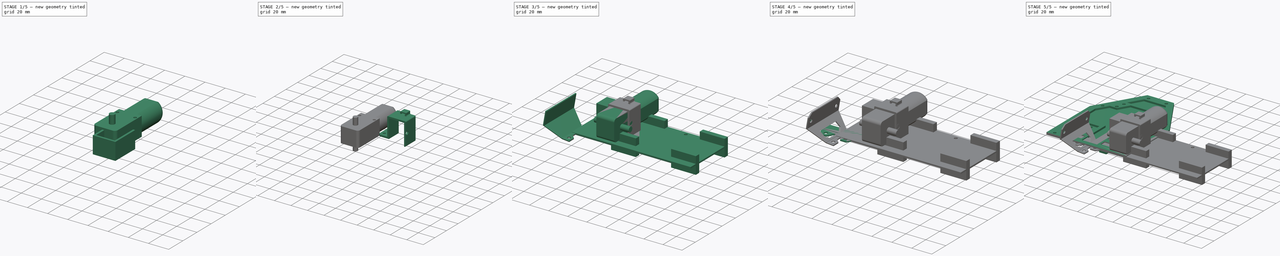
[diagram: build sequence overview — one tinted view per stage of 5, left to right]
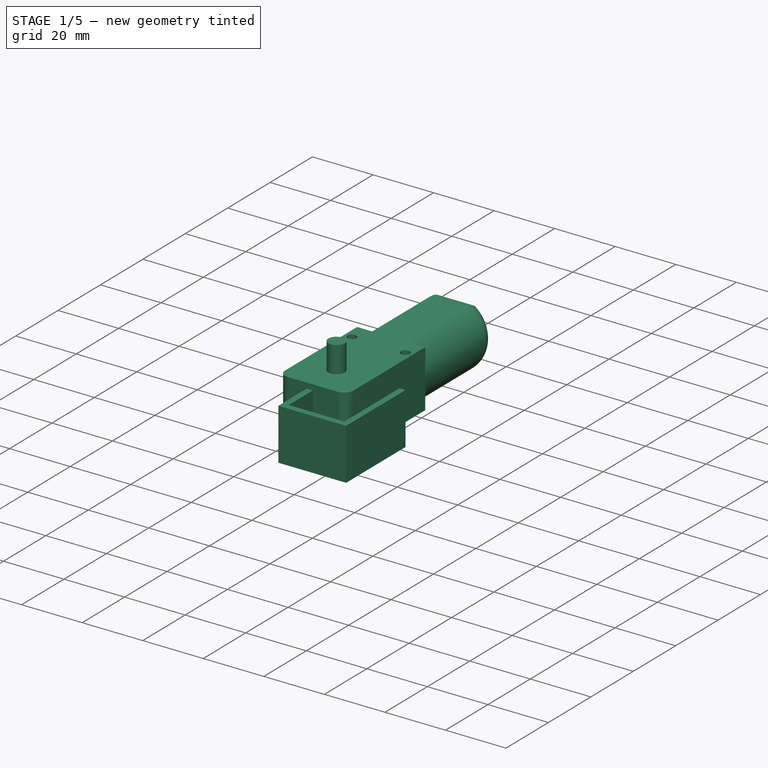
[diagram: stage 1 of 5 — iso view after this stage's code; geometry added in this stage tinted green]
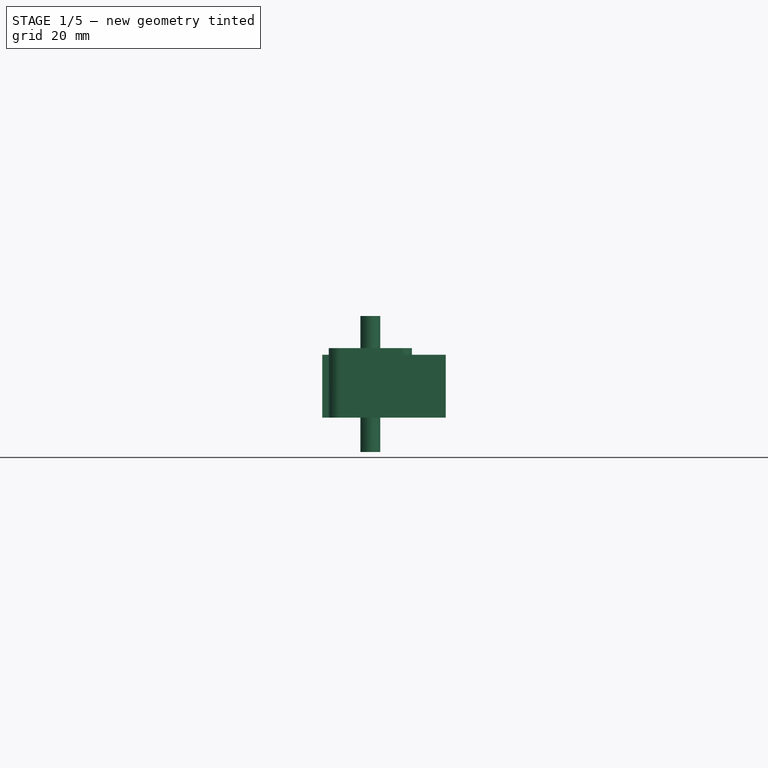
[diagram: stage 1 of 5 — front view after this stage's code; geometry added in this stage tinted green]
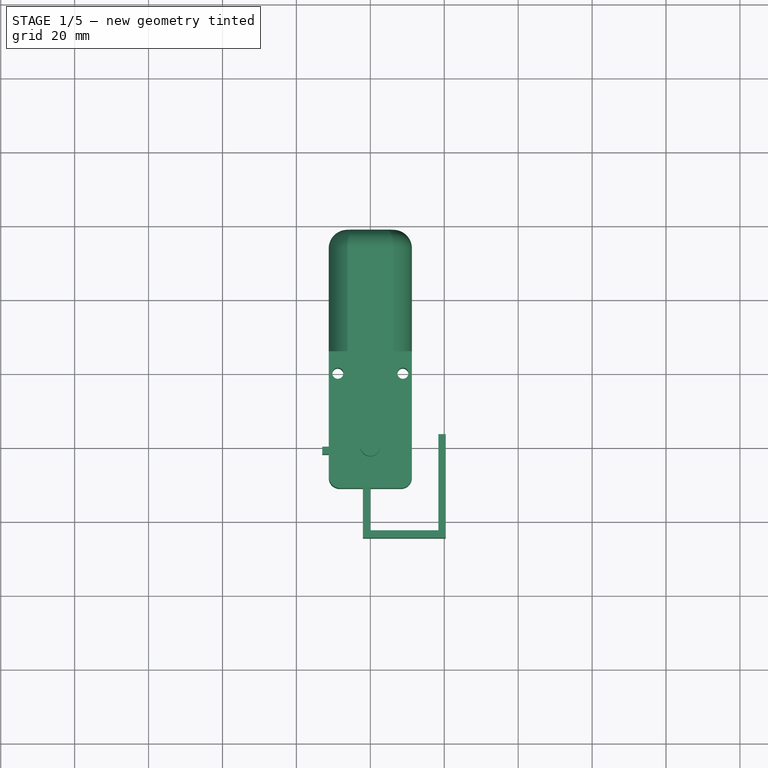
[diagram: stage 1 of 5 — top view after this stage's code; geometry added in this stage tinted green]
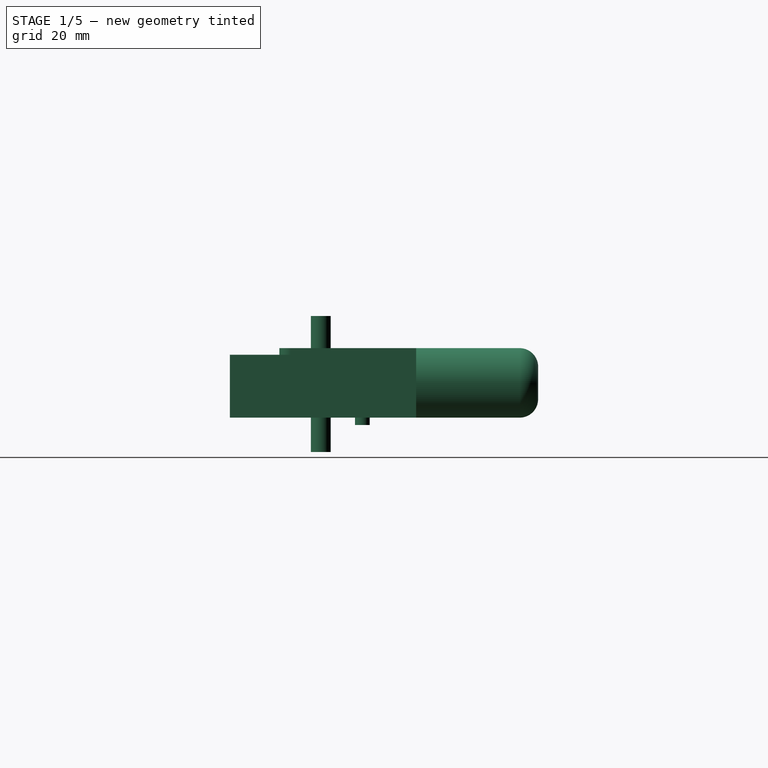
[diagram: stage 1 of 5 — right view after this stage's code; geometry added in this stage tinted green]
FCSTD DOCUMENT  (FreeCAD 0.18R4 (GitTag))
Label: chasis_v3
License: All rights reserved
LicenseURL: http://en.wikipedia.org/wiki/All_rights_reserved
objects: Sketcher::SketchObject×30, Part::Feature×20, PartDesign::Pad×16, PartDesign::Pocket×13, PartDesign::Body×7, PartDesign::Fillet×5, App::Part×4, PartDesign::Chamfer×3, Part::Mirroring×2, PartDesign::CoordinateSystem×1, App::DocumentObjectGroup×1
note: 126 computed .brp shape members not serialized (recipe doc carries the construction recipe); baked Part::Feature solids carry a one-line shape summary decoded from their .brp

FEATURE [PartDesign::Body] Body004  label="TivaC"
  Group = -> [Sketch018,Pad007,Sketch017,Pad008,Sketch019,Pad009]
  Origin = -> Origin008
  Placement = pos=(28,0,39) rot=(0,0,1;1.5708rad)
  Tip = -> Pad009
FEATURE [Sketcher::SketchObject] Sketch025  label="Sketch026"
  MapMode = 5
  Placement = pos=(18.4,0,0) rot=(0.57735,-0.57735,-0.57735;2.0944rad)
  sketch-geometry (3):
    g0: ArcOfCircle CenterX=11.1 CenterY=14.4 CenterZ=0 NormalX=0 NormalY=0 NormalZ=1 AngleXU=0 Radius=2 StartAngle=2.18166 EndAngle=7.24312
    g1: LineSegment StartX=9.95285 StartY=16.0383 StartZ=0 EndX=11.1 EndY=16.8415 EndZ=0
    g2: LineSegment StartX=11.1 StartY=16.8415 StartZ=0 EndX=12.2472 EndY=16.0383 EndZ=0
  constraints (8):
    c: DistanceX(g-1,g0) = 11.1
    c: Radius(g0) = 2
    c: DistanceY(g-1,g0) = 14.4
    c: Coincident(g1,g2)
    c: Tangent(g0,g1) = 1.5708
    c: Tangent(g0,g2) = 1.5708
    c: Vertical(g0,g1)
    c: Angle(g2,g-1) = 0.610865
FEATURE [Sketcher::SketchObject] Sketch027  label="Sketch028"
  MapMode = 5
  Support = -> [XY_Plane010]
  sketch-geometry (10):
    g0: LineSegment StartX=-2 StartY=-24.6 StartZ=0 EndX=-2 EndY=-2 EndZ=0
    g1: LineSegment StartX=-2 StartY=-2 StartZ=0 EndX=-13 EndY=-2 EndZ=0
    g2: LineSegment StartX=-13 StartY=-2 StartZ=0 EndX=-13 EndY=0 EndZ=0
    g3: LineSegment StartX=-13 StartY=0 StartZ=0 EndX=0 EndY=0 EndZ=0
    g4: LineSegment StartX=0 StartY=0 StartZ=0 EndX=0 EndY=-22.6 EndZ=0
    g5: LineSegment StartX=0 StartY=-22.6 StartZ=0 EndX=18.4 EndY=-22.6 EndZ=0
    g6: LineSegment StartX=18.4 StartY=-22.6 StartZ=0 EndX=18.4 EndY=3.4 EndZ=0
    g7: LineSegment StartX=18.4 StartY=3.4 StartZ=0 EndX=20.4 EndY=3.4 EndZ=0
    g8: LineSegment StartX=20.4 StartY=3.4 StartZ=0 EndX=20.4 EndY=-24.6 EndZ=0
    g9: LineSegment StartX=-2 StartY=-24.6 StartZ=0 EndX=20.4 EndY=-24.6 EndZ=0
  constraints (29):
    c: Coincident(g0,g1)
    c: Coincident(g1,g2)
    c: Coincident(g2,g3)
    c: Coincident(g3,g4)
    c: Coincident(g4,g5)
    c: Coincident(g5,g6)
    c: Coincident(g6,g7)
    c: Coincident(g7,g8)
    c: Coincident(g8,g9)
    c: Coincident(g0,g9)
    c: Horizontal(g7)
    c: Horizontal(g9)
    c: Horizontal(g5)
    c: Horizontal(g3)
    c: Horizontal(g1)
    c: Vertical(g2)
    c: Vertical(g4)
    c: Vertical(g0)
    c: Vertical(g6)
    c: Vertical(g8)
    c: Distance(g5) = 18.4
    c: Distance(g4) = 22.6
    c: Distance(g2) = 2
    c: DistanceX(g0,g4) = 2
    c: DistanceX(g5,g8) = 2
    c: DistanceY(g0,g4) = 2
    c: Distance(g6) = 26
    c: Distance(g3) = 13
    c: Coincident(g3,g-1)
FEATURE [PartDesign::Pad] Pad015
  Length = 17
  Length2 = 100
  Profile = -> Sketch027
  Type = 0
FEATURE [Sketcher::SketchObject] Sketch026  label="Sketch027"
  MapMode = 5
  Placement = pos=(0,-2,0) rot=(1,0,0;1.5708rad)
  Support = -> [Pad015]
  sketch-geometry (2):
    g0: Circle CenterX=-9 CenterY=3.65577 CenterZ=0 NormalX=0 NormalY=0 NormalZ=1 AngleXU=0 Radius=1.6
    g1: Circle CenterX=-9 CenterY=12.0779 CenterZ=0 NormalX=0 NormalY=0 NormalZ=1 AngleXU=0 Radius=1.6
  constraints (4):
    c: Radius(g1) = 1.6
    c: Equal(g1,g0)
    c: DistanceX(g0,g-1) = 9
    c: Vertical(g0,g1)
FEATURE [PartDesign::Pocket] Pocket011
  BaseFeature = -> Pad015
  Length = 5
  Length2 = 100
  Profile = -> Sketch026
  Type = 0
FEATURE [Sketcher::SketchObject] Sketch020  label="Sketch021"
  MapMode = 5
  Support = -> [XY_Plane009]
  sketch-geometry (8):
    g0: LineSegment StartX=-8.25 StartY=-11.2 StartZ=0 EndX=8.25 EndY=-11.2 EndZ=0
    g1: LineSegment StartX=11.25 StartY=-8.2 StartZ=0 EndX=11.25 EndY=25.8 EndZ=0
    g2: LineSegment StartX=11.25 StartY=25.8 StartZ=0 EndX=-11.25 EndY=25.8 EndZ=0
    g3: LineSegment StartX=-11.25 StartY=25.8 StartZ=0 EndX=-11.25 EndY=-8.2 EndZ=0
    g4: ArcOfCircle CenterX=-8.25 CenterY=-8.2 CenterZ=0 NormalX=0 NormalY=0 NormalZ=1 AngleXU=0 Radius=3 StartAngle=3.14159 EndAngle=4.71239
    g5: ArcOfCircle CenterX=8.25 CenterY=-8.2 CenterZ=0 NormalX=0 NormalY=0 NormalZ=1 AngleXU=0 Radius=3 StartAngle=4.71239 EndAngle=6.28319
    g6: Circle CenterX=-8.8 CenterY=19.85 CenterZ=0 NormalX=0 NormalY=0 NormalZ=1 AngleXU=0 Radius=1.5
    g7: Circle CenterX=8.8 CenterY=19.85 CenterZ=0 NormalX=0 NormalY=0 NormalZ=1 AngleXU=0 Radius=1.5
  constraints (20):
    c: Coincident(g1,g2)
    c: Coincident(g2,g3)
    c: Horizontal(g0)
    c: Vertical(g1)
    c: Vertical(g3)
    c: Distance(g2) = 22.5
    c: Tangent(g0,g4) = -1.5708
    c: Tangent(g3,g4) = -1.5708
    c: Tangent(g0,g5) = -1.5708
    c: Tangent(g1,g5) = -1.5708
    c: DistanceY(g0,g1) = 37
    c: Equal(g5,g4)
    c: Symmetric(g1,g2,g-2)
    c: Radius(g5) = 3
    c: Distance(g7,g6) = 17.6
    c: Radius(g6) = 1.5
    c: Equal(g7,g6)
    c: Symmetric(g7,g6,g-2)
    c: DistanceY(g-1,g7) = 19.85
    c: DistanceY(g0,g-1) = 11.2
FEATURE [PartDesign::Pad] Pad012
  Length = 18.8
  Length2 = 100
  Profile = -> Sketch020
  Type = 0
FEATURE [Sketcher::SketchObject] Sketch022  label="Sketch023"
  MapMode = 5
  Placement = pos=(0,0,18.8) rot=(0,0,1;0rad)
  Support = -> [Pad012]
  sketch-geometry (1):
    g0: Circle CenterX=0 CenterY=0 CenterZ=0 NormalX=0 NormalY=0 NormalZ=1 AngleXU=0 Radius=2.7
  constraints (2):
    c: Coincident(g-1,g0)
    c: Radius(g0) = 2.7
FEATURE [PartDesign::Pad] Pad010
  BaseFeature = -> Pad012
  Length = 8.7
  Length2 = 100
  Profile = -> Sketch022
  Type = 0
FEATURE [Sketcher::SketchObject] Sketch023  label="Sketch024"
  MapMode = 5
  Placement = pos=(0,0,0) rot=(1,0,0;3.14159rad)
  Support = -> [Pad010]
  sketch-geometry (1):
    g0: Circle CenterX=0 CenterY=0 CenterZ=0 NormalX=0 NormalY=0 NormalZ=1 AngleXU=0 Radius=2.7
  constraints (1):
    c: Radius(g0) = 2.7
FEATURE [PartDesign::Pad] Pad011
  BaseFeature = -> Pad010
  Length = 9.3
  Length2 = 100
  Profile = -> Sketch023
  Type = 0
FEATURE [Sketcher::SketchObject] Sketch024  label="Sketch025"
  ExternalGeometry = -> [Pad011]
  MapMode = 5
  Placement = pos=(0,25.8,0) rot=(0,0.707107,0.707107;3.14159rad)
  Support = -> [Pad011]
  sketch-geometry (5):
    g0: LineSegment [constr] StartX=-11.25 StartY=9.4 StartZ=0 EndX=11.25 EndY=9.4 EndZ=0
    g1: ArcOfCircle CenterX=0 CenterY=9.4 CenterZ=0 NormalX=0 NormalY=0 NormalZ=1 AngleXU=0 Radius=11.25 StartAngle=5.29404 EndAngle=7.27233
    g2: LineSegment StartX=6.18082 StartY=18.8 StartZ=0 EndX=-6.18082 EndY=18.8 EndZ=0
    g3: LineSegment StartX=6.18082 StartY=-3.6e-15 StartZ=0 EndX=-6.18082 EndY=-3.6e-15 EndZ=0
    g4: ArcOfCircle CenterX=0 CenterY=9.4 CenterZ=0 NormalX=0 NormalY=0 NormalZ=1 AngleXU=0 Radius=11.25 StartAngle=2.15245 EndAngle=4.13074
  constraints (17):
    c: Equal(g0,g-3)
    c: PointOnObject(g1,g0)
    c: PointOnObject(g0,g1)
    c: PointOnObject(g0,g1)
    c: PointOnObject(g1,g-2)
    c: Horizontal(g0)
    c: Equal(g1,g4)
    c: Coincident(g1,g2)
    c: Coincident(g1,g4)
    c: Coincident(g4,g2)
    c: Coincident(g1,g3)
    c: Coincident(g3,g4)
    c: Equal(g3,g2)
    c: PointOnObject(g1,g-3)
    c: Horizontal(g2)
    c: PointOnObject(g1,g-1)
    c: Horizontal(g3)
FEATURE [PartDesign::Pad] Pad003
  BaseFeature = -> Pad011
  Length = 33
  Length2 = 100
  Profile = -> Sketch024
  Type = 0
FEATURE [PartDesign::Fillet] Fillet001
  Base = -> Pad003 [Face20]
  BaseFeature = -> Pad003
  Radius = 5
FEATURE [Sketcher::SketchObject] Sketch021  label="Sketch022"
  MapMode = 5
  Placement = pos=(0,0,0) rot=(1,0,0;3.14159rad)
  Support = -> [Fillet001]
  sketch-geometry (1):
    g0: Circle CenterX=0 CenterY=-11.25 CenterZ=0 NormalX=0 NormalY=0 NormalZ=1 AngleXU=0 Radius=2
  constraints (3):
    c: PointOnObject(g0,g-2)
    c: Radius(g0) = 2
    c: Distance(g-1,g0) = 11.25
FEATURE [PartDesign::Pad] Pad013
  BaseFeature = -> Fillet001
  Length = 2
  Length2 = 100
  Profile = -> Sketch021
  Type = 0
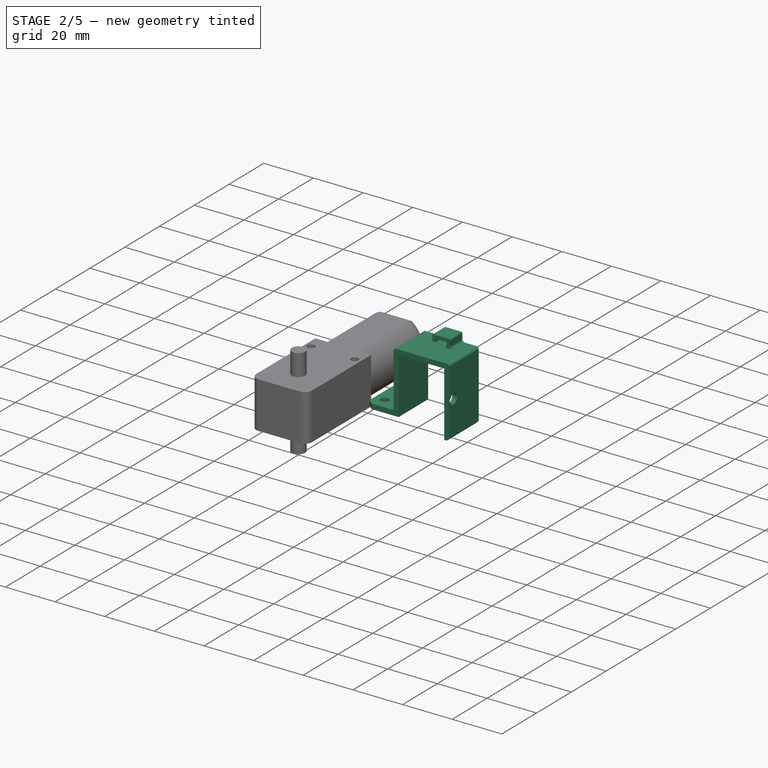
[diagram: stage 2 of 5 — iso view after this stage's code; geometry added in this stage tinted green]
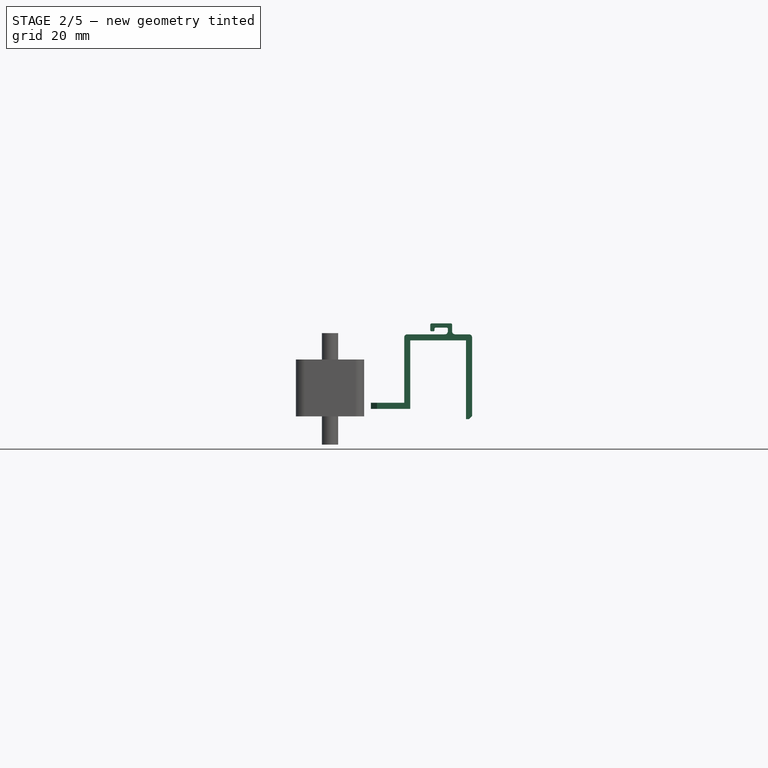
[diagram: stage 2 of 5 — front view after this stage's code; geometry added in this stage tinted green]
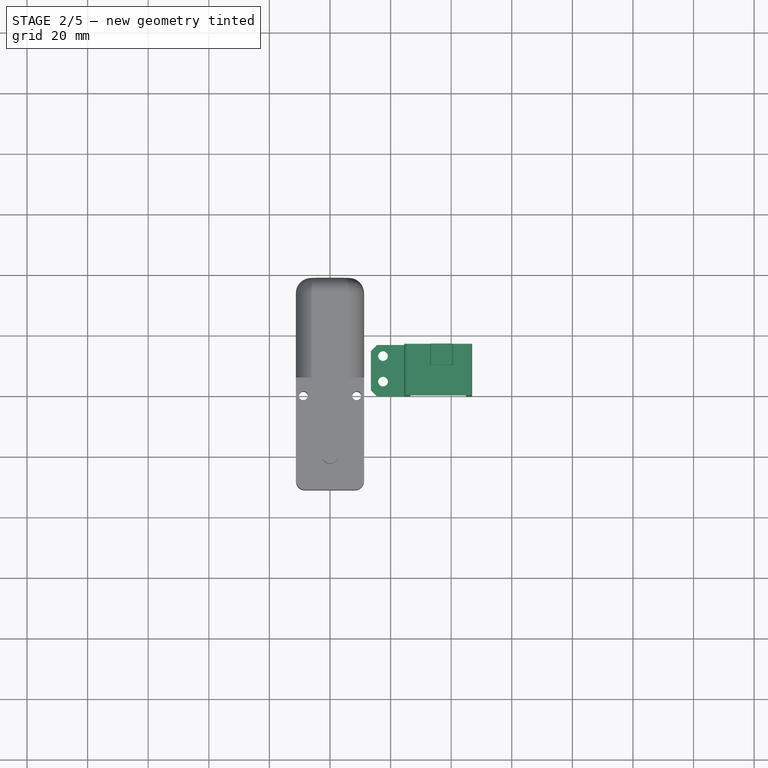
[diagram: stage 2 of 5 — top view after this stage's code; geometry added in this stage tinted green]
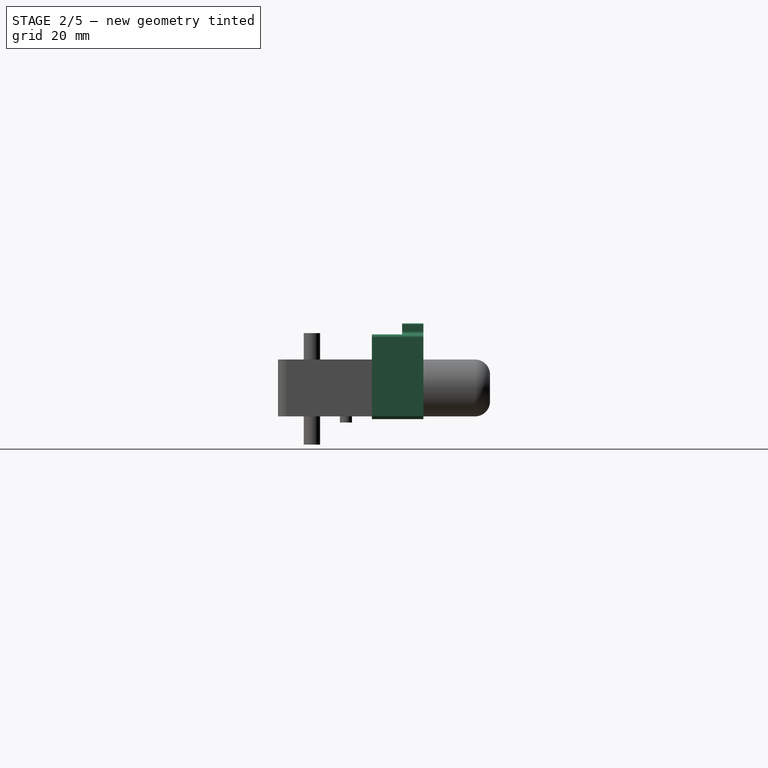
[diagram: stage 2 of 5 — right view after this stage's code; geometry added in this stage tinted green]
FEATURE [PartDesign::Pocket] Pocket012
  BaseFeature = -> Pocket011
  Length = 5
  Length2 = 100
  Profile = -> Sketch025
  Type = 0
FEATURE [PartDesign::Fillet] Fillet004
  Base = -> Pocket012 [Edge1,Edge5]
  BaseFeature = -> Pocket012
  Radius = 1
FEATURE [PartDesign::Chamfer] Chamfer002
  Base = -> Fillet004 [Edge23,Edge8]
  BaseFeature = -> Fillet004
  Size = 2
FEATURE [PartDesign::Chamfer] Chamfer003
  Base = -> Chamfer002 [Edge45]
  BaseFeature = -> Chamfer002
  Size = 1
FEATURE [Sketcher::SketchObject] Sketch028  label="Sketch029"
  MapMode = 5
  Placement = pos=(0,0,0) rot=(1,0,0;3.14159rad)
  Support = -> [Chamfer003]
  sketch-geometry (8):
    g0: LineSegment StartX=13.8 StartY=24.6 StartZ=0 EndX=12.4 EndY=24.6 EndZ=0
    g1: LineSegment StartX=13.8 StartY=24.6 StartZ=0 EndX=13.8 EndY=28.2 EndZ=0
    g2: LineSegment StartX=13.8 StartY=28.2 StartZ=0 EndX=6.6 EndY=28.2 EndZ=0
    g3: LineSegment StartX=6.6 StartY=28.2 StartZ=0 EndX=6.6 EndY=25.6 EndZ=0
    g4: LineSegment StartX=6.6 StartY=25.6 StartZ=0 EndX=8 EndY=25.6 EndZ=0
    g5: LineSegment StartX=8 StartY=25.6 StartZ=0 EndX=8 EndY=26.8 EndZ=0
    g6: LineSegment StartX=8 StartY=26.8 StartZ=0 EndX=12.4 EndY=26.8 EndZ=0
    g7: LineSegment StartX=12.4 StartY=26.8 StartZ=0 EndX=12.4 EndY=24.6 EndZ=0
  constraints (24):
    c: Horizontal(g0)
    c: Distance(g0) = 1.4
    c: DistanceY(g-1,g0) = 24.6
    c: DistanceX(g-1,g0) = 12.4
    c: Coincident(g1,g2)
    c: Coincident(g2,g3)
    c: Coincident(g3,g4)
    c: Coincident(g4,g5)
    c: Coincident(g5,g6)
    c: Coincident(g6,g7)
    c: Coincident(g0,g7)
    c: Vertical(g7)
    c: Vertical(g5)
    c: Vertical(g3)
    c: Horizontal(g4)
    c: Horizontal(g6)
    c: Horizontal(g2)
    c: Vertical(g1)
    c: Distance(g1) = 3.6
    c: Distance(g2) = 7.2
    c: Coincident(g0,g1)
    c: Distance(g3) = 2.6
    c: Equal(g4,g0)
    c: DistanceY(g6,g1) = 1.4
FEATURE [PartDesign::Pad] Pad014
  BaseFeature = -> Chamfer003
  Length = 7
  Length2 = 100
  Profile = -> Sketch028
  Reversed = true
  Type = 0
FEATURE [PartDesign::Fillet] Fillet003
  Base = -> Pad014 [Edge28,Edge30]
  BaseFeature = -> Pad014
  Radius = 1
FEATURE [PartDesign::Fillet] Fillet002
  Base = -> Fillet003 [Edge89,Edge88,Edge87,Edge84,Edge85,Edge86]
  BaseFeature = -> Fillet003
  Radius = 0.4
FEATURE [PartDesign::Body] Body006  label="soporte_TT"
  Group = -> [Sketch027,Pad015,Sketch026,Pocket011,Sketch025,Pocket012,Fillet004,Chamfer002,Chamfer003,Sketch028,Pad014,Fillet003,Fillet002]
  Origin = -> Origin010
  Placement = pos=(-26.5,36.8,2.5) rot=(0,-0.707107,0.707107;3.14159rad)
  Tip = -> Fillet002
FEATURE [Part::Mirroring] Part__Mirroring001  label="soporte_TT (Mirror #2)"
  Base = (0,0,0)
  Normal = (1,0,0)
  Source = -> Body006
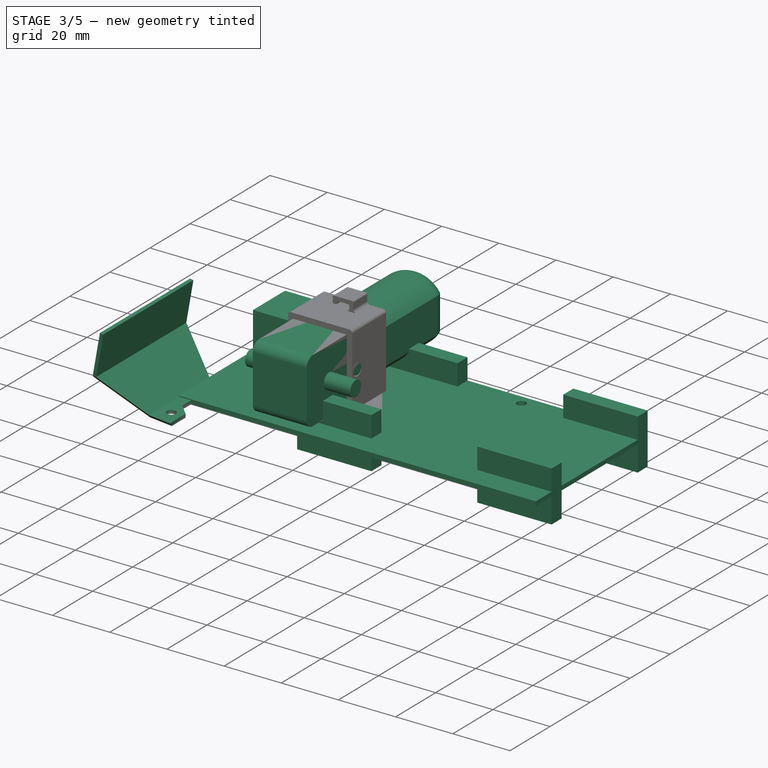
[diagram: stage 3 of 5 — iso view after this stage's code; geometry added in this stage tinted green]
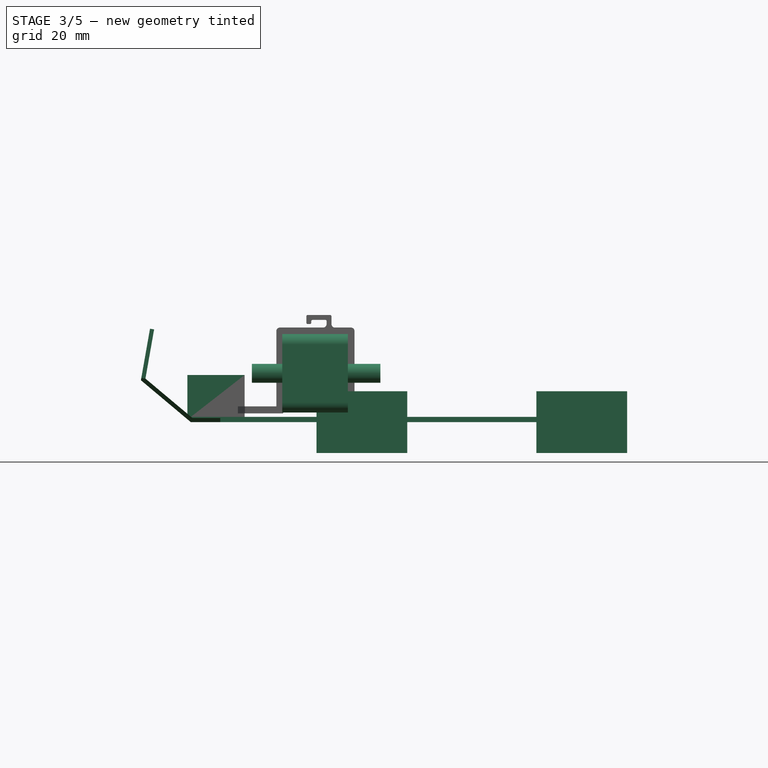
[diagram: stage 3 of 5 — front view after this stage's code; geometry added in this stage tinted green]
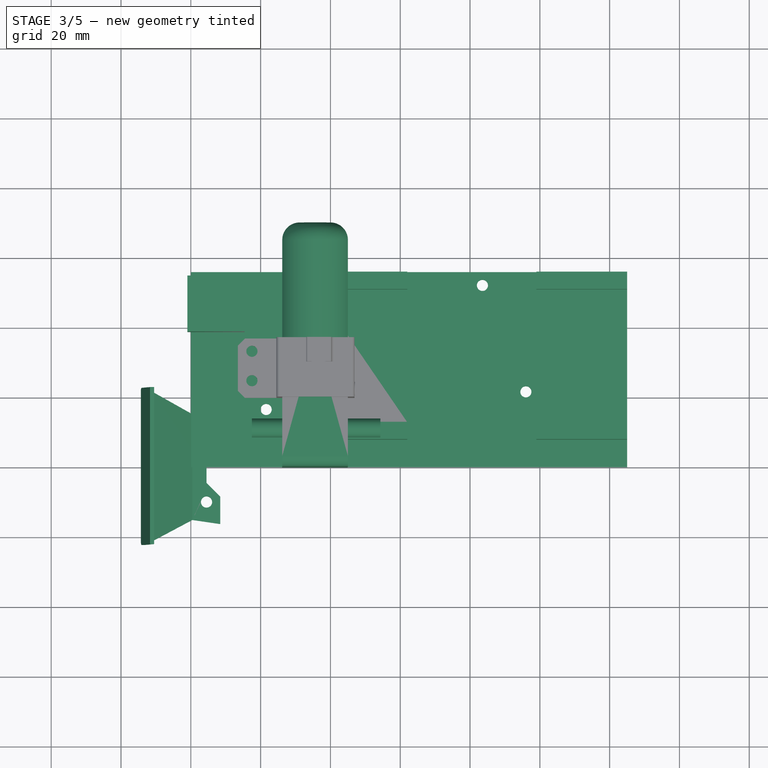
[diagram: stage 3 of 5 — top view after this stage's code; geometry added in this stage tinted green]
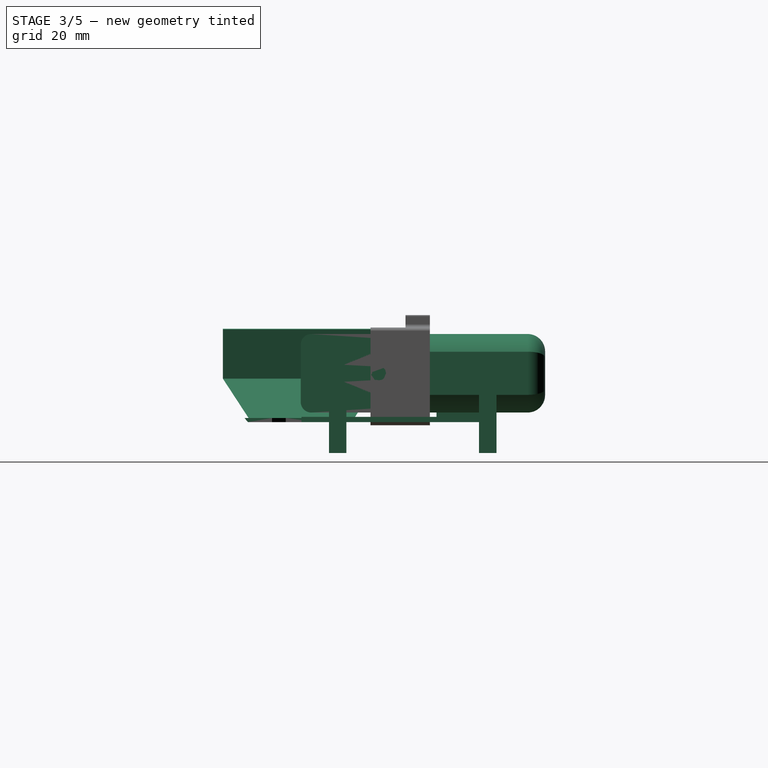
[diagram: stage 3 of 5 — right view after this stage's code; geometry added in this stage tinted green]
FEATURE [PartDesign::Body] Body001  label="soporte_linea"
  Group = -> [CopySketch005,Pad001,Sketch005,Pad002,Fillet,Sketch010,Pocket005]
  Origin = -> Origin001
  Placement = pos=(0,114.6,3.6) rot=(0,1,0;3.14159rad)
  Tip = -> Pocket005
FEATURE [PartDesign::CoordinateSystem] Local_CS_460
  AttacherType = Attacher::AttachEngine3D
FEATURE [Part::Feature] Pcb_460
  shape: bbox 80.01 x 31.75 x 1.6 mm, 84 faces, 3 solids (baked)
FEATURE [Sketcher::SketchObject] PCB_Sketch_460
  sketch-geometry (16):
    g0: LineSegment StartX=123.19 StartY=-92.71 StartZ=0 EndX=146.05 EndY=-92.71 EndZ=0
    g1: LineSegment StartX=119.38 StartY=-88.9 StartZ=0 EndX=123.19 EndY=-92.71 EndZ=0
    g2: LineSegment StartX=96.52 StartY=-88.9 StartZ=0 EndX=119.38 EndY=-88.9 EndZ=0
    g3: LineSegment StartX=93.98 StartY=-86.36 StartZ=0 EndX=96.52 EndY=-88.9 EndZ=0
    g4: LineSegment StartX=93.98 StartY=-67.31 StartZ=0 EndX=93.98 EndY=-86.36 EndZ=0
    g5: LineSegment StartX=106.68 StartY=-60.96 StartZ=0 EndX=93.98 EndY=-67.31 EndZ=0
    g6: LineSegment StartX=161.29 StartY=-60.96 StartZ=0 EndX=106.68 EndY=-60.96 EndZ=0
    g7: LineSegment StartX=173.99 StartY=-67.31 StartZ=0 EndX=161.29 EndY=-60.96 EndZ=0
    g8: LineSegment StartX=173.99 StartY=-86.36 StartZ=0 EndX=173.99 EndY=-67.31 EndZ=0
    g9: LineSegment StartX=171.45 StartY=-88.9 StartZ=0 EndX=173.99 EndY=-86.36 EndZ=0
    g10: LineSegment StartX=149.86 StartY=-88.9 StartZ=0 EndX=171.45 EndY=-88.9 EndZ=0
    g11: LineSegment StartX=146.05 StartY=-92.71 StartZ=0 EndX=149.86 EndY=-88.9 EndZ=0
    g12: Circle CenterX=99.06 CenterY=-86.36 CenterZ=0 NormalX=0 NormalY=0 NormalZ=1 AngleXU=0 Radius=1.27
    g13: Circle CenterX=168.91 CenterY=-86.36 CenterZ=0 NormalX=0 NormalY=0 NormalZ=1 AngleXU=0 Radius=1.27
    g14: Circle CenterX=99.06 CenterY=-86.36 CenterZ=0 NormalX=0 NormalY=0 NormalZ=1 AngleXU=0 Radius=1.79605
    g15: Circle CenterX=168.91 CenterY=-86.36 CenterZ=0 NormalX=0 NormalY=0 NormalZ=1 AngleXU=0 Radius=1.79605
  constraints (12):
    c: Coincident(g3,g4)
    c: Coincident(g4,g5)
    c: Coincident(g2,g3)
    c: Coincident(g5,g6)
    c: Coincident(g1,g2)
    c: Coincident(g0,g1)
    c: Coincident(g0,g11)
    c: Coincident(g10,g11)
    c: Coincident(g6,g7)
    c: Coincident(g9,g10)
    c: Coincident(g8,g9)
    c: Coincident(g7,g8)
FEATURE [App::Part] Board_Geoms_460
  Group = -> [Local_CS_460,Pcb_460,PCB_Sketch_460]
  Origin = -> Origin003
FEATURE [Part::Feature] Shape  label="U3_TCRT5000_5F1C69AC"
  Placement = pos=(140.97,-72.39,0) rot=(0,0.707107,0.707107;3.14159rad)
  shape: bbox 7 x 10.2 x 10.52 mm, 138 faces, 7 solids (baked)
FEATURE [Part::Feature] Shape001  label="U4_TCRT5000_5F1C69C9"
  Placement = pos=(127,-72.39,0) rot=(0,0.707107,0.707107;3.14159rad)
  shape: bbox 7 x 10.2 x 10.52 mm, 138 faces, 7 solids (baked)
FEATURE [Part::Feature] Shape002  label="U2_TCRT5000_5F1C698F"
  Placement = pos=(113.03,-73.66,0) rot=(0,0.707107,0.707107;3.14159rad)
  shape: bbox 7 x 10.2 x 10.52 mm, 138 faces, 7 solids (baked)
FEATURE [Part::Feature] Shape003  label="U1_TCRT5000_5F1C6972"
  Placement = pos=(99.06,-77.47,0) rot=(0,0.707107,0.707107;3.14159rad)
  shape: bbox 7 x 10.2 x 10.52 mm, 138 faces, 7 solids (baked)
FEATURE [Part::Feature] Shape004  label="U5_TCRT5000_5F1C69E6"
  Placement = pos=(154.94,-73.66,0) rot=(0,0.707107,0.707107;3.14159rad)
  shape: bbox 7 x 10.2 x 10.52 mm, 138 faces, 7 solids (baked)
FEATURE [Part::Feature] Shape005  label="U6_TCRT5000_5F1C8742"
  Placement = pos=(168.91,-77.47,0) rot=(0,0.707107,0.707107;3.14159rad)
  shape: bbox 7 x 10.2 x 10.52 mm, 138 faces, 7 solids (baked)
FEATURE [Part::Feature] Shape006  label="J1_PinHeader_1x08_P254mm_Vertical_5F1C686F"
  Placement = pos=(125.73,-88.9,-2) rot=(0.707107,-0.707107,0;3.14159rad)
  shape: bbox 20.32 x 2.54 x 11.54 mm, 196 faces (baked)
FEATURE [Part::Feature] Shape007  label="R6_R_Axial_DIN0207_L63mm_D25mm_P1016mm_Horizontal_5F1C68F9"
  Placement = pos=(119.38,-69.85,0) rot=(0,0,-1;1.5708rad)
  shape: bbox 2.706 x 10.96 x 5.603 mm, 17 faces (baked)
FEATURE [Part::Feature] Shape008  label="R11_R_Axial_DIN0207_L63mm_D25mm_P1016mm_Horizontal_5F1C85F6"
  Placement = pos=(160.02,-69.85,0) rot=(0,0,1;0rad)
  shape: bbox 10.96 x 2.706 x 5.603 mm, 17 faces (baked)
FEATURE [Part::Feature] Shape009  label="R12_R_Axial_DIN0207_L63mm_D25mm_P1016mm_Horizontal_5F1C860D"
  Placement = pos=(161.29,-73.66,0) rot=(0,0,-1;1.5708rad)
  shape: bbox 2.706 x 10.96 x 5.603 mm, 17 faces (baked)
FEATURE [Part::Feature] Shape010  label="R10_R_Axial_DIN0207_L63mm_D25mm_P1016mm_Horizontal_5F1C6955"
  Placement = pos=(148.59,-71.12,0) rot=(0,0,-1;1.5708rad)
  shape: bbox 2.706 x 10.96 x 5.603 mm, 17 faces (baked)
FEATURE [Part::Feature] Shape011  label="R9_R_Axial_DIN0207_L63mm_D25mm_P1016mm_Horizontal_5F1C693E"
  Placement = pos=(148.59,-66.04,0) rot=(0,0,1;0rad)
  shape: bbox 10.96 x 2.706 x 5.603 mm, 17 faces (baked)
FEATURE [Part::Feature] Shape012  label="R8_R_Axial_DIN0207_L63mm_D25mm_P1016mm_Horizontal_5F1C6927"
  Placement = pos=(132.08,-68.58,0) rot=(0,0,-1;1.5708rad)
  shape: bbox 2.706 x 10.96 x 5.603 mm, 17 faces (baked)
FEATURE [Part::Feature] Shape013  label="R7_R_Axial_DIN0207_L63mm_D25mm_P1016mm_Horizontal_5F1C6910"
  Placement = pos=(135.89,-68.58,0) rot=(0,0,-1;1.5708rad)
  shape: bbox 2.706 x 10.96 x 5.603 mm, 17 faces (baked)
FEATURE [Part::Feature] Shape014  label="R5_R_Axial_DIN0207_L63mm_D25mm_P1016mm_Horizontal_5F1C68E2"
  Placement = pos=(106.68,-73.66,0) rot=(0,0,-1;1.5708rad)
  shape: bbox 2.706 x 10.96 x 5.603 mm, 17 faces (baked)
FEATURE [Part::Feature] Shape015  label="R4_R_Axial_DIN0207_L63mm_D25mm_P1016mm_Horizontal_5F1C68CB"
  Placement = pos=(132.08,-64.77,0) rot=(0,0,1;3.14159rad)
  shape: bbox 10.96 x 2.706 x 5.603 mm, 17 faces (baked)
FEATURE [Part::Feature] Shape016  label="R3_R_Axial_DIN0207_L63mm_D25mm_P1016mm_Horizontal_5F1C68B4"
  Placement = pos=(135.89,-64.77,0) rot=(0,0,1;0rad)
  shape: bbox 10.96 x 2.706 x 5.603 mm, 17 faces (baked)
FEATURE [Part::Feature] Shape017  label="R2_R_Axial_DIN0207_L63mm_D25mm_P1016mm_Horizontal_5F1C689D"
  Placement = pos=(119.38,-66.04,0) rot=(0,0,1;3.14159rad)
  shape: bbox 10.96 x 2.706 x 5.603 mm, 17 faces (baked)
FEATURE [Part::Feature] Shape018  label="R1_R_Axial_DIN0207_L63mm_D25mm_P1016mm_Horizontal_5F1C6886"
  Placement = pos=(107.95,-69.85,0) rot=(0,0,1;3.14159rad)
  shape: bbox 10.96 x 2.706 x 5.603 mm, 17 faces (baked)
FEATURE [App::Part] Top_460
  Group = -> [Shape,Shape001,Shape002,Shape003,Shape004,Shape005,Shape006,Shape007,Shape008,Shape009,Shape010,Shape011,Shape012,Shape013,Shape014,Shape015,Shape016,Shape017,Shape018]
  Origin = -> Origin005
FEATURE [App::Part] Step_Models_460
  Group = -> [Top_460]
  Origin = -> Origin006
FEATURE [App::Part] Board_460  label="Sensor_array"
  Group = -> [Board_Geoms_460,Step_Models_460]
  Origin = -> Origin004
  Placement = pos=(133.8,219,-1) rot=(0,1,0;3.14159rad)
FEATURE [Sketcher::SketchObject] Sketch011  label="Sketch012"
  MapMode = 5
  Placement = pos=(0,0,0) rot=(1,0,0;1.5708rad)
  Support = -> [XZ_Plane007]
  sketch-geometry (9):
    g0: LineSegment StartX=0 StartY=0 StartZ=0 EndX=8.43676 EndY=0 EndZ=0
    g1: LineSegment StartX=8.43676 StartY=0 StartZ=0 EndX=8.43676 EndY=1.2 EndZ=0
    g2: LineSegment StartX=8.43676 StartY=1.2 StartZ=0 EndX=0.436764 EndY=1.2 EndZ=0
    g3: LineSegment StartX=0.436764 StartY=1.2 StartZ=0 EndX=-12.999 EndY=12.4739 EndZ=0
    g4: LineSegment StartX=-12.999 StartY=12.4739 StartZ=0 EndX=-10.5146 EndY=26.5637 EndZ=0
    g5: LineSegment StartX=-10.5146 StartY=26.5637 StartZ=0 EndX=-11.6963 EndY=26.7721 EndZ=0
    g6: LineSegment StartX=-11.6963 StartY=26.7721 StartZ=0 EndX=-14.301 EndY=12 EndZ=0
    g7: LineSegment StartX=-14.301 StartY=12 StartZ=0 EndX=0 EndY=0 EndZ=0
    g8: LineSegment [constr] StartX=-2.16512 StartY=1.81675 StartZ=0 EndX=-1.39378 EndY=2.73601 EndZ=0
  constraints (26):
    c: Coincident(g0,g1)
    c: Coincident(g1,g2)
    c: Coincident(g2,g3)
    c: Coincident(g3,g4)
    c: Coincident(g4,g5)
    c: Coincident(g5,g6)
    c: Coincident(g6,g7)
    c: Coincident(g7,g0)
    c: Horizontal(g0)
    c: Horizontal(g2)
    c: Vertical(g1)
    c: Parallel(g3,g7)
    c: Coincident(g0,g-1)
    c: Equal(g1,g5)
    c: Distance(g1) = 1.2
    c: Distance(g2) = 8
    c: PointOnObject(g8,g3)
    c: PointOnObject(g8,g7)
    c: Perpendicular(g7,g8)
    c: Distance(g8) = 1.2
    c: Angle(g-1,g7) = 2.44346
    c: Distance(g6) = 15
    c: DistanceY(g0,g6) = 12
    c: Perpendicular(g4,g5)
    c: Parallel(g4,g6)
    c: Angle(g-1,g4) = 1.39626
FEATURE [PartDesign::Pad] Pad006
  Length = 45
  Length2 = 100
  Midplane = true
  Placement = pos=(0,0,0) rot=(1,0,0;1.5708rad)
  Profile = -> Sketch011
  Type = 0
FEATURE [Sketcher::SketchObject] Sketch012  label="Sketch013"
  MapMode = 5
  Placement = pos=(-15.9219,6e-16,2.80747) rot=(-0.642788,0,0.766044;3.14159rad)
  Support = -> [Pad006]
  sketch-geometry (8):
    g0: LineSegment StartX=-10 StartY=-22.5 StartZ=0 EndX=0 EndY=-14.109 EndZ=0
    g1: LineSegment StartX=0 StartY=-14.109 StartZ=0 EndX=0 EndY=-23.5 EndZ=0
    g2: LineSegment StartX=0 StartY=-23.5 StartZ=0 EndX=-10 EndY=-23.5 EndZ=0
    g3: LineSegment StartX=-10 StartY=-23.5 StartZ=0 EndX=-10 EndY=-22.5 EndZ=0
    g4: LineSegment StartX=-10 StartY=22.5 StartZ=0 EndX=0 EndY=14.109 EndZ=0
    g5: LineSegment StartX=0 StartY=14.109 StartZ=0 EndX=0 EndY=23.5 EndZ=0
    g6: LineSegment StartX=0 StartY=23.5 StartZ=0 EndX=-10 EndY=23.5 EndZ=0
    g7: LineSegment StartX=-10 StartY=23.5 StartZ=0 EndX=-10 EndY=22.5 EndZ=0
  constraints (22):
    c: Coincident(g0,g1)
    c: Coincident(g1,g2)
    c: Coincident(g2,g3)
    c: Coincident(g3,g0)
    c: Coincident(g4,g5)
    c: Coincident(g5,g6)
    c: Coincident(g6,g7)
    c: Coincident(g7,g4)
    c: Vertical(g5)
    c: Vertical(g1)
    c: Vertical(g3)
    c: Vertical(g7)
    c: Horizontal(g2)
    c: Horizontal(g6)
    c: Symmetric(g0,g4,g-1)
    c: Symmetric(g4,g0,g-1)
    c: Distance(g0,g4) = 45
    c: Angle(g4,g-2) = 2.26893
    c: DistanceX(g4,g-1) = 10
    c: Equal(g7,g3)
    c: Distance(g3) = 1
    c: PointOnObject(g0,g-2)
FEATURE [PartDesign::Pocket] Pocket009
  BaseFeature = -> Pad006
  Length = 29
  Length2 = 100
  Placement = pos=(0,0,0) rot=(1,0,0;1.5708rad)
  Profile = -> Sketch012
  Type = 0
FEATURE [Sketcher::SketchObject] Sketch013  label="Sketch014"
  MapMode = 5
  Placement = pos=(0,3e-16,1.2) rot=(0,0,1;3.14159rad)
  Support = -> [Pocket009]
  sketch-geometry (6):
    g0: Circle CenterX=-4.5 CenterY=10 CenterZ=0 NormalX=0 NormalY=0 NormalZ=1 AngleXU=0 Radius=1.6
    g1: Circle CenterX=-4.5 CenterY=-10 CenterZ=0 NormalX=0 NormalY=0 NormalZ=1 AngleXU=0 Radius=1.6
    g2: LineSegment StartX=-9.5 StartY=-9.5 StartZ=0 EndX=-4.5 EndY=-4.5 EndZ=0
    g3: LineSegment StartX=-4.5 StartY=-4.5 StartZ=0 EndX=-4.5 EndY=4.5 EndZ=0
    g4: LineSegment StartX=-4.5 StartY=4.5 StartZ=0 EndX=-9.5 EndY=9.5 EndZ=0
    g5: LineSegment StartX=-9.5 StartY=9.5 StartZ=0 EndX=-9.5 EndY=-9.5 EndZ=0
  constraints (15):
    c: Equal(g1,g0)
    c: Radius(g0) = 1.6
    c: Distance(g0,g1) = 20
    c: Symmetric(g1,g0,g-1)
    c: DistanceX(g1,g-1) = 4.5
    c: Coincident(g2,g3)
    c: Coincident(g3,g4)
    c: Coincident(g4,g5)
    c: Coincident(g5,g2)
    c: Symmetric(g2,g4,g-1)
    c: Symmetric(g2,g3,g-1)
    c: Angle(g4,g-1) = 0.785398
    c: Vertical(g2,g1)
    c: Distance(g3) = 9
    c: DistanceX(g2,g2) = 5
FEATURE [PartDesign::Pocket] Pocket010
  BaseFeature = -> Pocket009
  Length = 5
  Length2 = 100
  Placement = pos=(0,0,0) rot=(1,0,0;1.5708rad)
  Profile = -> Sketch013
  Type = 0
FEATURE [PartDesign::Body] Body003  label="soporte_Sharp"
  Group = -> [Sketch011,Pad006,Sketch012,Pocket009,Sketch013,Pocket010,Sketch014,Pocket006,Chamfer001,Sketch015,Pocket007,Sketch016,Pocket008]
  Origin = -> Origin007
  Placement = pos=(0,119,3.6) rot=(0,0,1;-1.5708rad)
  Tip = -> Pocket008
FEATURE [Sketcher::SketchObject] Sketch018  label="Sketch019"
  MapMode = 5
  Support = -> [XY_Plane008]
  sketch-geometry (7):
    g0: LineSegment StartX=0 StartY=55.88 StartZ=0 EndX=125 EndY=55.88 EndZ=0
    g1: LineSegment StartX=125 StartY=55.88 StartZ=0 EndX=125 EndY=0 EndZ=0
    g2: LineSegment StartX=125 StartY=0 StartZ=0 EndX=0 EndY=0 EndZ=0
    g3: LineSegment StartX=0 StartY=0 StartZ=0 EndX=0 EndY=55.88 EndZ=0
    g4: Circle CenterX=21.59 CenterY=16.51 CenterZ=0 NormalX=0 NormalY=0 NormalZ=1 AngleXU=0 Radius=1.5875
    g5: Circle CenterX=83.55 CenterY=52.07 CenterZ=0 NormalX=0 NormalY=0 NormalZ=1 AngleXU=0 Radius=1.5875
    g6: Circle CenterX=96 CenterY=21.57 CenterZ=0 NormalX=0 NormalY=0 NormalZ=1 AngleXU=0 Radius=1.5875
  constraints (20):
    c: Coincident(g0,g1)
    c: Coincident(g1,g2)
    c: Coincident(g2,g3)
    c: Coincident(g3,g0)
    c: Horizontal(g0)
    c: Horizontal(g2)
    c: Vertical(g1)
    c: Vertical(g3)
    c: Distance(g0) = 125
    c: Distance(g1) = 55.88
    c: Coincident(g-1,g2)
    c: Equal(g4,g5)
    c: Equal(g6,g5)
    c: Radius(g5) = 1.5875
    c: DistanceX(g2,g4) = 21.59
    c: DistanceX(g2,g5) = 83.55
    c: DistanceX(g2,g6) = 96
    c: DistanceY(g2,g4) = 16.51
    c: DistanceY(g2,g6) = 21.57
    c: DistanceY(g2,g5) = 52.07
FEATURE [PartDesign::Pad] Pad007
  Length = 1.5
  Length2 = 100
  Profile = -> Sketch018
  Type = 0
FEATURE [Sketcher::SketchObject] Sketch017  label="Sketch018"
  ExternalGeometry = -> [Pad007]
  MapMode = 5
  Placement = pos=(0,0,0) rot=(1,0,0;3.14159rad)
  Support = -> [Pad007]
  sketch-geometry (16):
    g0: LineSegment StartX=36 StartY=-7.88 StartZ=0 EndX=62 EndY=-7.88 EndZ=0
    g1: LineSegment StartX=62 StartY=-7.88 StartZ=0 EndX=62 EndY=-12.88 EndZ=0
    g2: LineSegment StartX=62 StartY=-12.88 StartZ=0 EndX=36 EndY=-12.88 EndZ=0
    g3: LineSegment StartX=36 StartY=-12.88 StartZ=0 EndX=36 EndY=-7.88 EndZ=0
    g4: LineSegment StartX=99 StartY=-7.88 StartZ=0 EndX=125 EndY=-7.88 EndZ=0
    g5: LineSegment StartX=125 StartY=-7.88 StartZ=0 EndX=125 EndY=-12.88 EndZ=0
    g6: LineSegment StartX=125 StartY=-12.88 StartZ=0 EndX=99 EndY=-12.88 EndZ=0
    g7: LineSegment StartX=99 StartY=-12.88 StartZ=0 EndX=99 EndY=-7.88 EndZ=0
    g8: LineSegment StartX=99 StartY=-50.88 StartZ=0 EndX=125 EndY=-50.88 EndZ=0
    g9: LineSegment StartX=125 StartY=-50.88 StartZ=0 EndX=125 EndY=-55.88 EndZ=0
    g10: LineSegment StartX=125 StartY=-55.88 StartZ=0 EndX=99 EndY=-55.88 EndZ=0
    g11: LineSegment StartX=99 StartY=-55.88 StartZ=0 EndX=99 EndY=-50.88 EndZ=0
    g12: LineSegment StartX=36 StartY=-50.88 StartZ=0 EndX=62 EndY=-50.88 EndZ=0
    g13: LineSegment StartX=62 StartY=-50.88 StartZ=0 EndX=62 EndY=-55.88 EndZ=0
    g14: LineSegment StartX=62 StartY=-55.88 StartZ=0 EndX=36 EndY=-55.88 EndZ=0
    g15: LineSegment StartX=36 StartY=-55.88 StartZ=0 EndX=36 EndY=-50.88 EndZ=0
  constraints (47):
    c: Coincident(g0,g1)
    c: Coincident(g1,g2)
    c: Coincident(g2,g3)
    c: Coincident(g3,g0)
    c: Horizontal(g0)
    c: Horizontal(g2)
    c: Vertical(g1)
    c: Vertical(g3)
    c: Coincident(g4,g5)
    c: Coincident(g5,g6)
    c: Coincident(g6,g7)
    c: Coincident(g7,g4)
    c: Horizontal(g4)
    c: Horizontal(g6)
    c: Vertical(g5)
    c: Vertical(g7)
    c: Coincident(g8,g9)
    c: Coincident(g9,g10)
    c: Coincident(g10,g11)
    c: Coincident(g11,g8)
    c: Horizontal(g8)
    c: Horizontal(g10)
    c: Vertical(g9)
    c: Vertical(g11)
    c: Coincident(g12,g13)
    c: Coincident(g13,g14)
    c: Coincident(g14,g15)
    c: Coincident(g15,g12)
    c: Horizontal(g12)
    c: Horizontal(g14)
    c: Vertical(g13)
    c: Vertical(g15)
    c: Coincident(g-3,g9)
    c: Equal(g9,g5)
    c: Equal(g5,g1)
    c: Equal(g1,g13)
    c: Distance(g9) = 5
    c: Equal(g10,g6)
    c: Equal(g6,g2)
    c: Equal(g2,g14)
    c: Distance(g10) = 26
    c: Vertical(g5,g8)
    c: Vertical(g12,g1)
    c: Horizontal(g12,g8)
    c: Horizontal(g6,g1)
    c: Distance(g5,g8) = 38
    c: Distance(g14,g9) = 89
FEATURE [PartDesign::Pad] Pad008
  BaseFeature = -> Pad007
  Length = 17.7
  Length2 = 100
  Midplane = true
  Profile = -> Sketch017
  Type = 0
FEATURE [Sketcher::SketchObject] Sketch019  label="Sketch020"
  ExternalGeometry = -> [Pad008]
  MapMode = 5
  Placement = pos=(0,0,1.5) rot=(0,0,1;0rad)
  Support = -> [Pad008]
  sketch-geometry (4):
    g0: LineSegment StartX=15.4 StartY=38.68 StartZ=0 EndX=-1 EndY=38.68 EndZ=0
    g1: LineSegment StartX=-1 StartY=38.68 StartZ=0 EndX=-1 EndY=54.68 EndZ=0
    g2: LineSegment StartX=-1 StartY=54.68 StartZ=0 EndX=15.4 EndY=54.68 EndZ=0
    g3: LineSegment StartX=15.4 StartY=54.68 StartZ=0 EndX=15.4 EndY=38.68 EndZ=0
  constraints (12):
    c: Coincident(g0,g1)
    c: Coincident(g1,g2)
    c: Coincident(g2,g3)
    c: Coincident(g3,g0)
    c: Horizontal(g0)
    c: Horizontal(g2)
    c: Vertical(g1)
    c: Vertical(g3)
    c: Distance(g3) = 16
    c: Distance(g2) = 16.4
    c: DistanceX(g1,g-3) = 1
    c: DistanceY(g1,g-3) = 1.2
FEATURE [PartDesign::Pad] Pad009
  BaseFeature = -> Pad008
  Length = 12
  Length2 = 100
  Profile = -> Sketch019
  Type = 0
FEATURE [PartDesign::Body] Body005  label="Motores_TT"
  Group = -> [Sketch020,Pad012,Sketch022,Pad010,Sketch023,Pad011,Sketch024,Pad003,Fillet001,Sketch021,Pad013]
  Origin = -> Origin009
  Placement = pos=(-45,11,14) rot=(0,1,0;1.5708rad)
  Tip = -> Pad013
FEATURE [Part::Mirroring] Part__Mirroring  label="Motores_TT (Mirror #1)"
  Base = (0,34.8,14)
  Normal = (1,0,-1.19209e-07)
  Source = -> Body005
FEATURE [App::DocumentObjectGroup] Group  label="componentes"
  Group = -> [Board_460,Body004,Body005,Part__Mirroring]
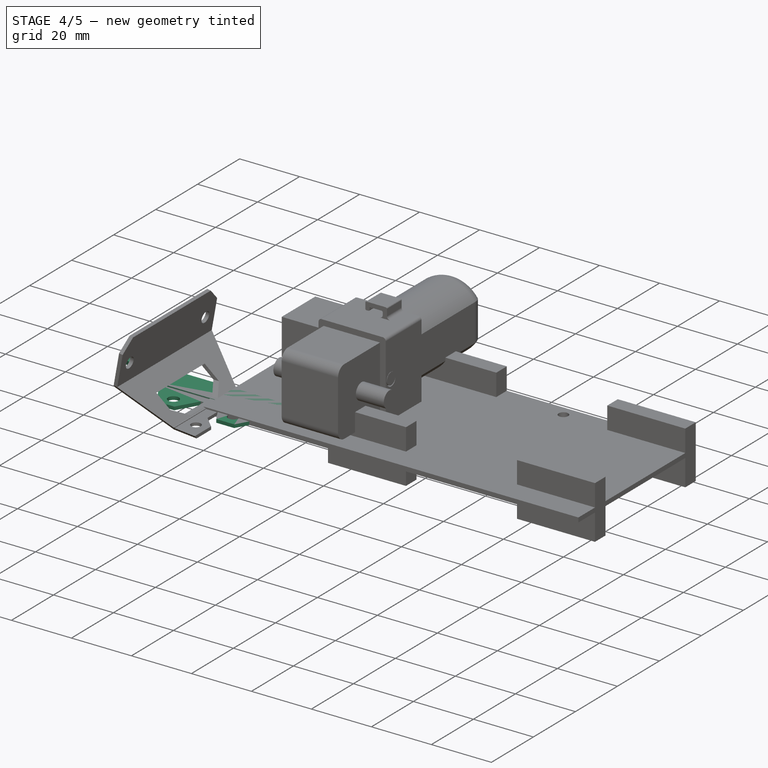
[diagram: stage 4 of 5 — iso view after this stage's code; geometry added in this stage tinted green]
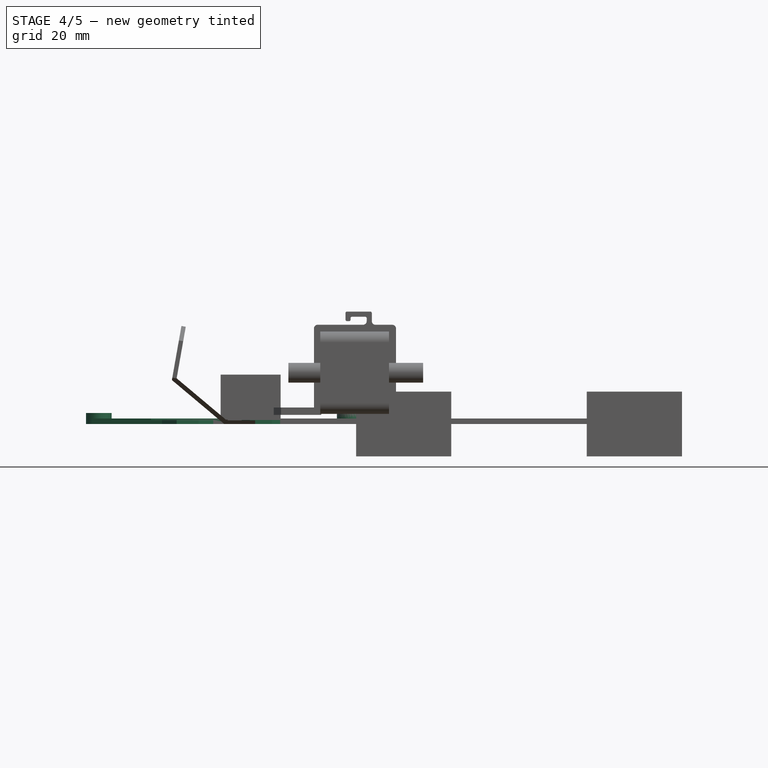
[diagram: stage 4 of 5 — front view after this stage's code; geometry added in this stage tinted green]
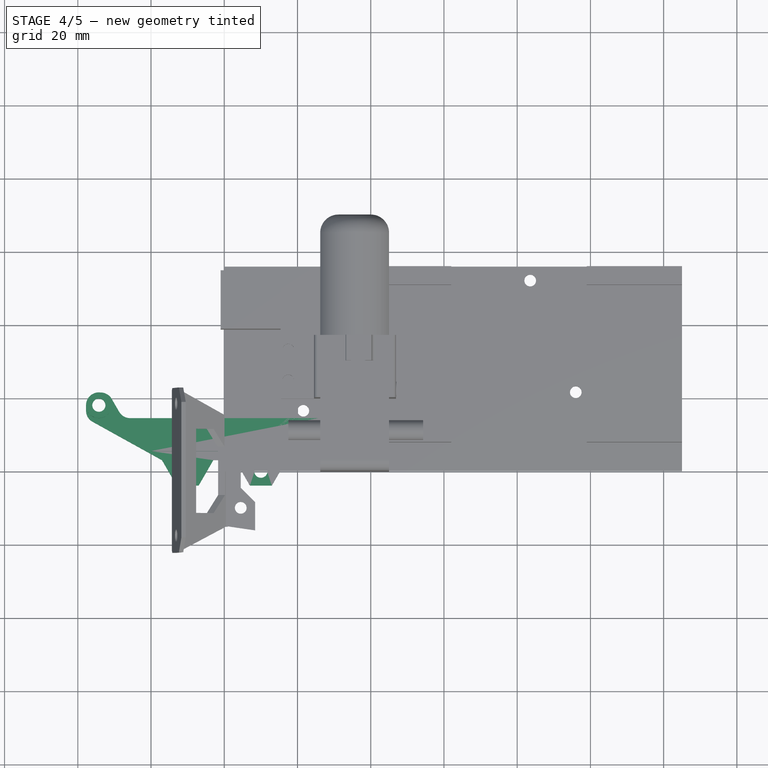
[diagram: stage 4 of 5 — top view after this stage's code; geometry added in this stage tinted green]
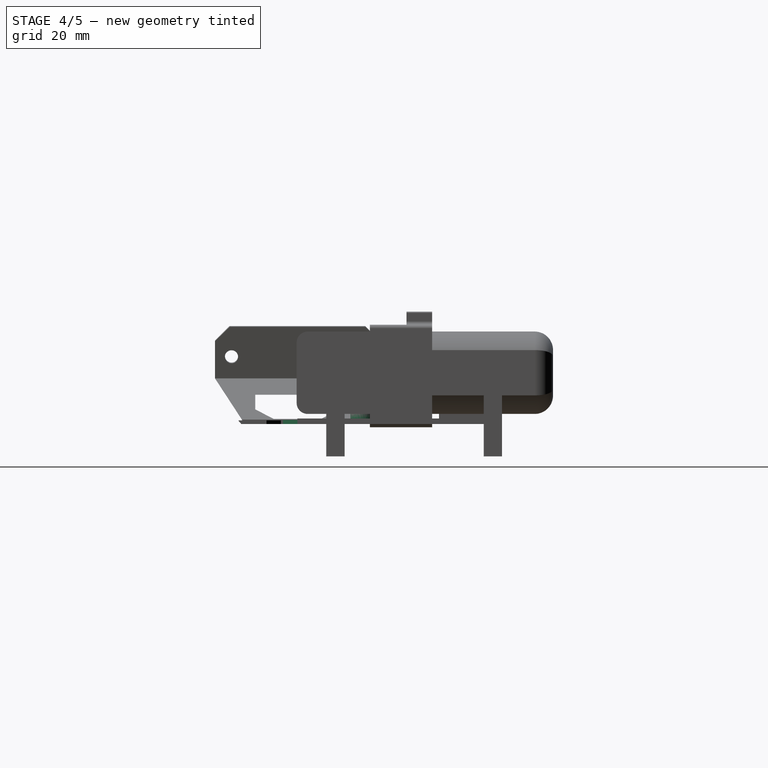
[diagram: stage 4 of 5 — right view after this stage's code; geometry added in this stage tinted green]
FEATURE [PartDesign::Body] Body  label="chasis1"
  Group = -> [Sketch,Pad,Sketch001,Pocket,Sketch002,Pocket001,Sketch003,Sketch004,Pocket002,Pocket003]
  Origin = -> Origin
  Tip = -> Pocket003
FEATURE [Sketcher::SketchObject] CopySketch005  label="Sketch005"
  sketch-geometry (20):
    g0: Circle CenterX=-10 CenterY=0 CenterZ=0 NormalX=0 NormalY=0 NormalZ=1 AngleXU=0 Radius=1.8
    g1: Circle CenterX=10 CenterY=0 CenterZ=0 NormalX=0 NormalY=0 NormalZ=1 AngleXU=0 Radius=1.8
    g2: Circle CenterX=34.25 CenterY=18 CenterZ=0 NormalX=0 NormalY=0 NormalZ=1 AngleXU=0 Radius=1.8
    g3: Circle CenterX=-34.25 CenterY=18 CenterZ=0 NormalX=0 NormalY=0 NormalZ=1 AngleXU=0 Radius=1.8
    g4: LineSegment StartX=-13 StartY=-3.9282 StartZ=0 EndX=-7 EndY=-3.9282 EndZ=0
    g5: LineSegment StartX=-7 StartY=-3.9282 StartZ=0 EndX=-3 EndY=3 EndZ=0
    g6: LineSegment StartX=-3 StartY=3 StartZ=0 EndX=3 EndY=3 EndZ=0
    g7: LineSegment StartX=3 StartY=3 StartZ=0 EndX=7 EndY=-3.9282 EndZ=0
    g8: LineSegment StartX=7 StartY=-3.9282 StartZ=0 EndX=13 EndY=-3.9282 EndZ=0
    g9: LineSegment StartX=13 StartY=-3.9282 StartZ=0 EndX=17 EndY=3 EndZ=0
    g10: LineSegment StartX=17 StartY=3 StartZ=0 EndX=37.75 EndY=14.5 EndZ=0
    g11: LineSegment StartX=37.75 StartY=14.5 StartZ=0 EndX=37.75 EndY=21.5 EndZ=0
    g12: LineSegment StartX=37.75 StartY=21.5 StartZ=0 EndX=31.75 EndY=21.5 EndZ=0
    g13: LineSegment StartX=31.75 StartY=21.5 StartZ=0 EndX=27.7085 EndY=14.5 EndZ=0
    g14: LineSegment StartX=27.7085 StartY=14.5 StartZ=0 EndX=-27.7085 EndY=14.5 EndZ=0
    g15: LineSegment StartX=-27.7085 StartY=14.5 StartZ=0 EndX=-31.75 EndY=21.5 EndZ=0
    g16: LineSegment StartX=-31.75 StartY=21.5 StartZ=0 EndX=-37.75 EndY=21.5 EndZ=0
    g17: LineSegment StartX=-37.75 StartY=21.5 StartZ=0 EndX=-37.75 EndY=14.5 EndZ=0
    g18: LineSegment StartX=-37.75 StartY=14.5 StartZ=0 EndX=-17 EndY=3 EndZ=0
    g19: LineSegment StartX=-17 StartY=3 StartZ=0 EndX=-13 EndY=-3.9282 EndZ=0
  constraints (57):
    c: Symmetric(g3,g2,g-2)
    c: Symmetric(g0,g1,g-2)
    c: Distance(g2,g3) = 68.5
    c: Distance(g1,g0) = 20
    c: Equal(g1,g0)
    c: Equal(g0,g3)
    c: Equal(g3,g2)
    c: Radius(g2) = 1.8
    c: DistanceY(g1,g2) = 18
    c: Coincident(g4,g5)
    c: Coincident(g5,g6)
    c: Coincident(g6,g7)
    c: Coincident(g7,g8)
    c: Coincident(g8,g9)
    c: Coincident(g9,g10)
    c: Coincident(g10,g11)
    c: Coincident(g13,g14)
    c: Coincident(g14,g15)
    c: Coincident(g15,g16)
    c: Coincident(g16,g17)
    c: Coincident(g17,g18)
    c: Coincident(g18,g19)
    c: Coincident(g19,g4)
    c: Coincident(g12,g13)
    c: Coincident(g11,g12)
    c: Symmetric(g17,g10,g-2)
    c: Horizontal(g16)
    c: Horizontal(g14)
    c: Horizontal(g12)
    c: Horizontal(g8)
    c: Horizontal(g4)
    c: Horizontal(g6)
    c: Vertical(g17)
    c: Vertical(g11)
    c: Angle(g13,g-1) = 2.0944
    c: Symmetric(g18,g9,g-2)
    c: Equal(g4,g8)
    c: Equal(g7,g5)
    c: Equal(g9,g19)
    c: Equal(g18,g10)
    c: Equal(g17,g11)
    c: Equal(g13,g15)
    c: Equal(g12,g16)
    c: Distance(g8) = 6
    c: DistanceX(g1,g8) = 3
    c: Angle(g-1,g9) = 1.0472
    c: Angle(g-1,g7) = 2.0944
    c: PointOnObject(g1,g-1)
    c: Horizontal(g6,g9)
    c: DistanceY(g-1,g6) = 3
    c: Distance(g6) = 6
    c: Horizontal(g7,g4)
    c: Horizontal(g17,g14)
    c: Distance(g16) = 6
    c: DistanceX(g16,g3) = 3.5
    c: Distance(g17) = 7
    c: DistanceY(g3,g16) = 3.5
FEATURE [PartDesign::Pad] Pad001
  Length = 1.5
  Length2 = 100
  Profile = -> CopySketch005
  Type = 0
FEATURE [Sketcher::SketchObject] Sketch005  label="Sketch006"
  MapMode = 5
  Placement = pos=(0,0,1.5) rot=(0,0,1;0rad)
  Support = -> [Pad001]
  sketch-geometry (4):
    g0: Circle CenterX=34.25 CenterY=18 CenterZ=0 NormalX=0 NormalY=0 NormalZ=1 AngleXU=0 Radius=1.8
    g1: Circle CenterX=34.25 CenterY=18 CenterZ=0 NormalX=0 NormalY=0 NormalZ=1 AngleXU=0 Radius=3.5
    g2: Circle CenterX=-34.25 CenterY=18 CenterZ=0 NormalX=0 NormalY=0 NormalZ=1 AngleXU=0 Radius=1.8
    g3: Circle CenterX=-34.25 CenterY=18 CenterZ=0 NormalX=0 NormalY=0 NormalZ=1 AngleXU=0 Radius=3.5
  constraints (9):
    c: Coincident(g2,g3)
    c: Coincident(g0,g1)
    c: Equal(g2,g0)
    c: Equal(g1,g3)
    c: Radius(g2) = 1.8
    c: Radius(g3) = 3.5
    c: Symmetric(g2,g0,g-2)
    c: Distance(g0,g2) = 68.5
    c: DistanceY(g-1,g0) = 18
FEATURE [PartDesign::Pad] Pad002
  BaseFeature = -> Pad001
  Length = 1.5
  Length2 = 100
  Profile = -> Sketch005
  Type = 0
FEATURE [PartDesign::Fillet] Fillet
  Base = -> Pad002 [Edge58,Edge59,Edge57,Edge56,Edge54,Edge52,Edge51,Edge46]
  BaseFeature = -> Pad002
  Radius = 3.49
FEATURE [PartDesign::Body] Body002  label="chasis2"
  Group = -> [Sketch007,Pad004,Sketch008,Pocket004,Sketch009,Pad005]
  Origin = -> Origin002
  Placement = pos=(0,0,73) rot=(0,0,1;0rad)
  Tip = -> Pad005
FEATURE [Sketcher::SketchObject] Sketch010  label="Sketch011"
  MapMode = 5
  Placement = pos=(0,0,1.5) rot=(0,0,1;0rad)
  Support = -> [Fillet]
  sketch-geometry (4):
    g0: LineSegment StartX=-20 StartY=-5.5 StartZ=0 EndX=20 EndY=-5.5 EndZ=0
    g1: LineSegment StartX=20 StartY=-5.5 StartZ=0 EndX=20 EndY=5.5 EndZ=0
    g2: LineSegment StartX=20 StartY=5.5 StartZ=0 EndX=-20 EndY=5.5 EndZ=0
    g3: LineSegment StartX=-20 StartY=5.5 StartZ=0 EndX=-20 EndY=-5.5 EndZ=0
  constraints (10):
    c: Coincident(g0,g1)
    c: Coincident(g1,g2)
    c: Coincident(g2,g3)
    c: Coincident(g3,g0)
    c: Horizontal(g0)
    c: Vertical(g3)
    c: Symmetric(g1,g2,g-2)
    c: Symmetric(g0,g1,g-1)
    c: Distance(g2) = 40
    c: Distance(g3) = 11
FEATURE [PartDesign::Pocket] Pocket005
  BaseFeature = -> Fillet
  Length = 0.4
  Length2 = 100
  Profile = -> Sketch010
  Type = 0
FEATURE [Sketcher::SketchObject] Sketch014  label="Sketch015"
  MapMode = 5
  Placement = pos=(-15.9219,6e-16,2.80747) rot=(-0.642788,0,0.766044;3.14159rad)
  Support = -> [Pocket010]
  sketch-geometry (2):
    g0: Circle CenterX=-16 CenterY=18 CenterZ=0 NormalX=0 NormalY=0 NormalZ=1 AngleXU=0 Radius=1.8
    g1: Circle CenterX=-16 CenterY=-18 CenterZ=0 NormalX=0 NormalY=0 NormalZ=1 AngleXU=0 Radius=1.8
  constraints (5):
    c: Equal(g1,g0)
    c: Radius(g0) = 1.8
    c: Distance(g0,g1) = 36
    c: Symmetric(g1,g0,g-1)
    c: DistanceX(g0,g-1) = 16
FEATURE [PartDesign::Pocket] Pocket006
  BaseFeature = -> Pocket010
  Length = 5
  Length2 = 100
  Placement = pos=(0,0,0) rot=(1,0,0;1.5708rad)
  Profile = -> Sketch014
  Type = 0
FEATURE [PartDesign::Chamfer] Chamfer001
  Base = -> Pocket006 [Edge46,Edge48]
  BaseFeature = -> Pocket006
  Placement = pos=(0,0,0) rot=(1,0,0;1.5708rad)
  Size = 4
FEATURE [Sketcher::SketchObject] Sketch015  label="Sketch016"
  MapMode = 5
  Placement = pos=(-5.5128,0,0) rot=(0.707107,0,0.707107;3.14159rad)
  sketch-geometry (6):
    g0: LineSegment StartX=1.4 StartY=6.5 StartZ=0 EndX=1.4 EndY=-6.5 EndZ=0
    g1: LineSegment StartX=1.4 StartY=-6.5 StartZ=0 EndX=4 EndY=-11.5 EndZ=0
    g2: LineSegment StartX=4 StartY=-11.5 StartZ=0 EndX=8 EndY=-11.5 EndZ=0
    g3: LineSegment StartX=8 StartY=-11.5 StartZ=0 EndX=8 EndY=11.5 EndZ=0
    g4: LineSegment StartX=8 StartY=11.5 StartZ=0 EndX=4 EndY=11.5 EndZ=0
    g5: LineSegment StartX=4 StartY=11.5 StartZ=0 EndX=1.4 EndY=6.5 EndZ=0
  constraints (17):
    c: Coincident(g0,g1)
    c: Coincident(g1,g2)
    c: Coincident(g2,g3)
    c: Coincident(g3,g4)
    c: Coincident(g4,g5)
    c: Coincident(g0,g5)
    c: Vertical(g0)
    c: Horizontal(g4)
    c: Horizontal(g2)
    c: Symmetric(g1,g4,g-1)
    c: Equal(g4,g2)
    c: Equal(g1,g5)
    c: Distance(g3) = 23
    c: Distance(g2) = 4
    c: DistanceX(g-1,g0) = 1.4
    c: Distance(g0) = 13
    c: DistanceX(g-1,g2) = 8
FEATURE [PartDesign::Pocket] Pocket007
  BaseFeature = -> Chamfer001
  Length = 14
  Length2 = 100
  Midplane = true
  Placement = pos=(0,0,0) rot=(1,0,0;1.5708rad)
  Profile = -> Sketch015
  Type = 0
FEATURE [Sketcher::SketchObject] Sketch016  label="Sketch017"
  ExternalGeometry = -> [Pocket007]
  MapMode = 5
  Placement = pos=(0,3e-16,1.2) rot=(0,0,1;3.14159rad)
  Support = -> [Pocket007]
  sketch-geometry (4):
    g0: LineSegment StartX=-8.90745 StartY=-18.202 StartZ=0 EndX=-0.90745 EndY=-18.202 EndZ=0
    g1: LineSegment StartX=-0.90745 StartY=-18.202 StartZ=0 EndX=-0.90745 EndY=18.202 EndZ=0
    g2: LineSegment StartX=-0.90745 StartY=18.202 StartZ=0 EndX=-8.90745 EndY=18.202 EndZ=0
    g3: LineSegment StartX=-8.90745 StartY=18.202 StartZ=0 EndX=-8.90745 EndY=-18.202 EndZ=0
  constraints (9):
    c: Coincident(g0,g1)
    c: Coincident(g1,g2)
    c: Coincident(g2,g3)
    c: Coincident(g3,g0)
    c: Horizontal(g0)
    c: Horizontal(g2)
    c: Vertical(g3)
    c: Symmetric(g0,g1,g-1)
    c: Distance(g2) = 8
FEATURE [PartDesign::Pocket] Pocket008
  BaseFeature = -> Pocket007
  Length = 0.2
  Length2 = 100
  Placement = pos=(0,0,0) rot=(1,0,0;1.5708rad)
  Profile = -> Sketch016
  Type = 0
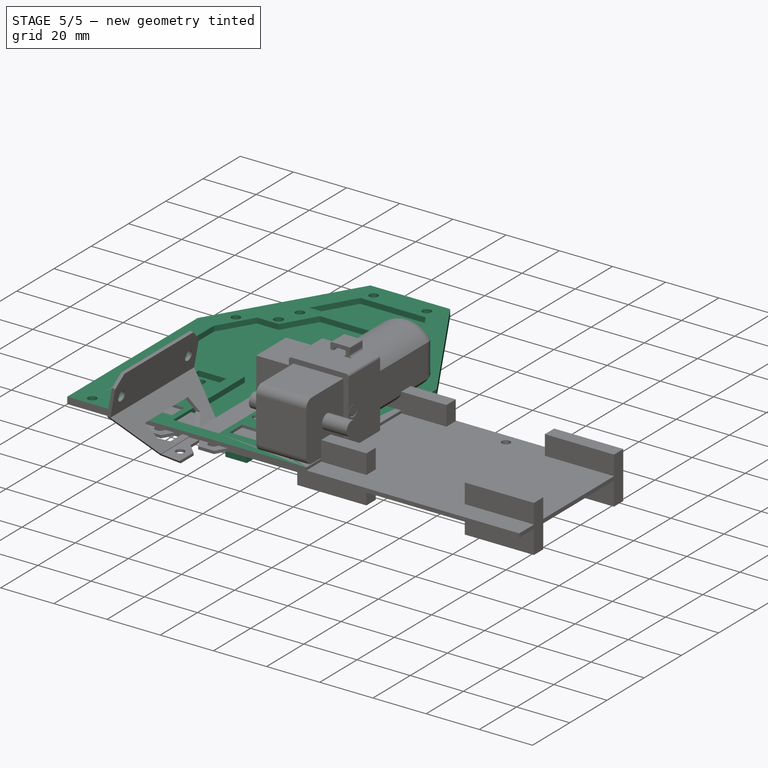
[diagram: stage 5 of 5 — iso view after this stage's code; geometry added in this stage tinted green]
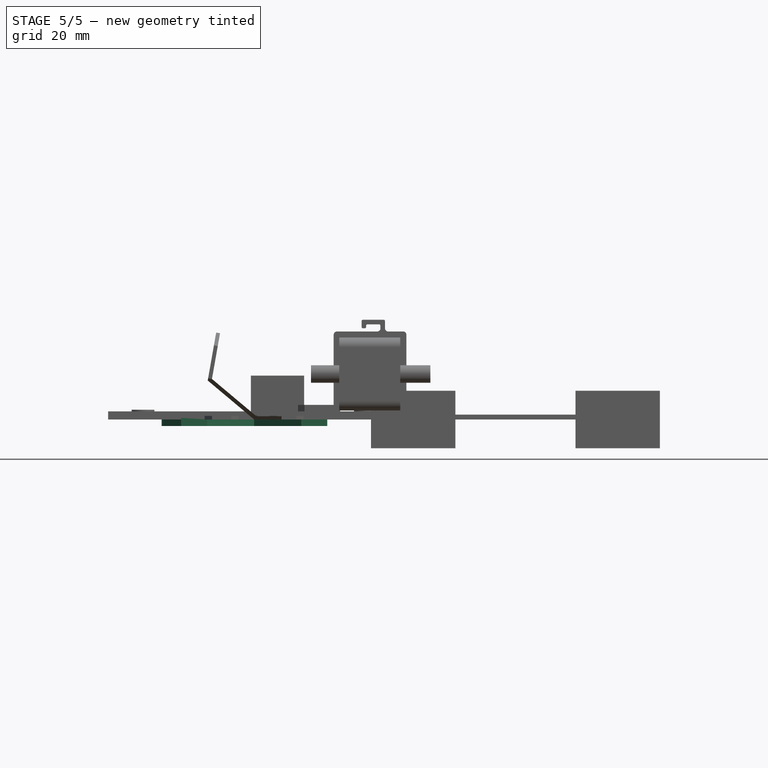
[diagram: stage 5 of 5 — front view after this stage's code; geometry added in this stage tinted green]
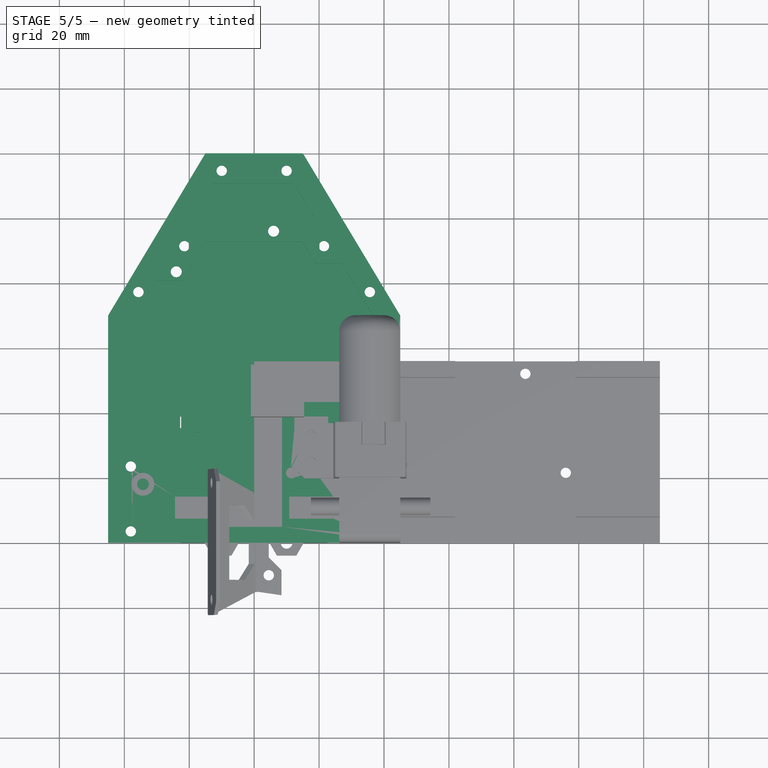
[diagram: stage 5 of 5 — top view after this stage's code; geometry added in this stage tinted green]
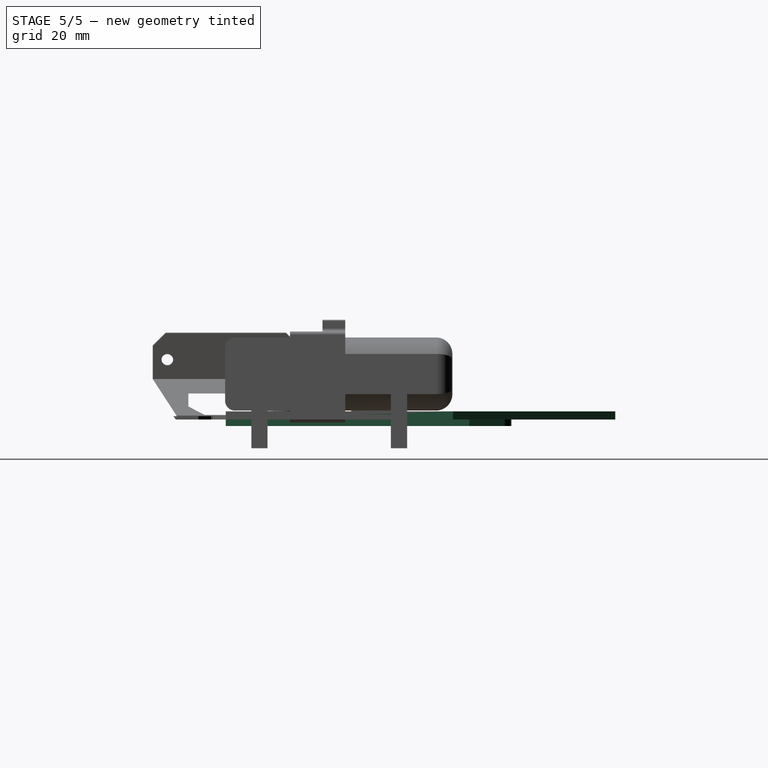
[diagram: stage 5 of 5 — right view after this stage's code; geometry added in this stage tinted green]
FEATURE [Sketcher::SketchObject] Sketch
  MapMode = 5
  Support = -> [XY_Plane]
  sketch-geometry (6):
    g0: LineSegment StartX=-45 StartY=0 StartZ=0 EndX=45 EndY=0 EndZ=0
    g1: LineSegment StartX=45 StartY=0 StartZ=0 EndX=45 EndY=70 EndZ=0
    g2: LineSegment StartX=45 StartY=70 StartZ=0 EndX=15 EndY=120 EndZ=0
    g3: LineSegment StartX=15 StartY=120 StartZ=0 EndX=-15 EndY=120 EndZ=0
    g4: LineSegment StartX=-15 StartY=120 StartZ=0 EndX=-45 EndY=70 EndZ=0
    g5: LineSegment StartX=-45 StartY=70 StartZ=0 EndX=-45 EndY=0 EndZ=0
  constraints (17):
    c: Coincident(g0,g1)
    c: Coincident(g1,g2)
    c: Coincident(g2,g3)
    c: Coincident(g3,g4)
    c: Coincident(g4,g5)
    c: Coincident(g5,g0)
    c: Symmetric(g0,g0,g-2)
    c: Equal(g1,g5)
    c: Vertical(g5)
    c: Vertical(g1)
    c: Horizontal(g3)
    c: Equal(g4,g2)
    c: PointOnObject(g-1,g0)
    c: Distance(g0) = 90
    c: DistanceY(g-1,g2) = 120
    c: Distance(g3) = 30
    c: Distance(g1) = 70
FEATURE [PartDesign::Pad] Pad
  Length = 2.5
  Length2 = 100
  Profile = -> Sketch
  Type = 0
FEATURE [Sketcher::SketchObject] Sketch001
  MapMode = 5
  Placement = pos=(0,0,2.5) rot=(0,0,1;0rad)
  Support = -> [Pad]
  sketch-geometry (36):
    g0: LineSegment [constr] StartX=26.6 StartY=73 StartZ=0 EndX=45 EndY=73 EndZ=0
    g1: LineSegment [constr] StartX=45 StartY=73 StartZ=0 EndX=45 EndY=0 EndZ=0
    g2: LineSegment [constr] StartX=45 StartY=0 StartZ=0 EndX=26.6 EndY=0 EndZ=0
    g3: LineSegment [constr] StartX=26.6 StartY=0 StartZ=0 EndX=26.6 EndY=73 EndZ=0
    g4: LineSegment [constr] StartX=-26.6 StartY=73 StartZ=0 EndX=-45 EndY=73 EndZ=0
    g5: LineSegment [constr] StartX=-45 StartY=73 StartZ=0 EndX=-45 EndY=0 EndZ=0
    g6: LineSegment [constr] StartX=-45 StartY=0 StartZ=0 EndX=-26.6 EndY=0 EndZ=0
    g7: LineSegment [constr] StartX=-26.6 StartY=0 StartZ=0 EndX=-26.6 EndY=73 EndZ=0
    g8: ArcOfCircle CenterX=-17.6 CenterY=23 CenterZ=0 NormalX=0 NormalY=0 NormalZ=1 AngleXU=0 Radius=1.6 StartAngle=3.14159 EndAngle=6.28319
    g9: ArcOfCircle CenterX=-17.6 CenterY=32.5 CenterZ=0 NormalX=0 NormalY=0 NormalZ=1 AngleXU=0 Radius=1.6 StartAngle=1.4e-15 EndAngle=3.14159
    g10: LineSegment StartX=-16 StartY=23 StartZ=0 EndX=-16 EndY=32.5 EndZ=0
    g11: LineSegment StartX=-19.2 StartY=23 StartZ=0 EndX=-19.2 EndY=32.5 EndZ=0
    g12: ArcOfCircle CenterX=17.6 CenterY=32.5 CenterZ=0 NormalX=0 NormalY=0 NormalZ=1 AngleXU=0 Radius=1.6 StartAngle=2.2e-15 EndAngle=3.14159
    g13: ArcOfCircle CenterX=17.6 CenterY=23 CenterZ=0 NormalX=0 NormalY=0 NormalZ=1 AngleXU=0 Radius=1.6 StartAngle=3.14159 EndAngle=6.28319
    g14: LineSegment StartX=16 StartY=32.5 StartZ=0 EndX=16 EndY=23 EndZ=0
    g15: LineSegment StartX=19.2 StartY=32.5 StartZ=0 EndX=19.2 EndY=23 EndZ=0
    g16: Circle CenterX=38 CenterY=3.5 CenterZ=0 NormalX=0 NormalY=0 NormalZ=1 AngleXU=0 Radius=1.6
    g17: Circle CenterX=38 CenterY=23.5 CenterZ=0 NormalX=0 NormalY=0 NormalZ=1 AngleXU=0 Radius=1.6
    g18: Circle CenterX=-38 CenterY=3.5 CenterZ=0 NormalX=0 NormalY=0 NormalZ=1 AngleXU=0 Radius=1.6
    g19: Circle CenterX=-38 CenterY=23.5 CenterZ=0 NormalX=0 NormalY=0 NormalZ=1 AngleXU=0 Radius=1.6
    g20: LineSegment StartX=-24.4 StartY=7.4 StartZ=0 EndX=-10.8 EndY=7.4 EndZ=0
    g21: LineSegment StartX=-10.8 StartY=7.4 StartZ=0 EndX=-10.8 EndY=14.2 EndZ=0
    g22: LineSegment StartX=-10.8 StartY=14.2 StartZ=0 EndX=-24.4 EndY=14.2 EndZ=0
    g23: LineSegment StartX=-24.4 StartY=14.2 StartZ=0 EndX=-24.4 EndY=7.4 EndZ=0
    g24: LineSegment StartX=10.8 StartY=7.4 StartZ=0 EndX=24.4 EndY=7.4 EndZ=0
    g25: LineSegment StartX=24.4 StartY=7.4 StartZ=0 EndX=24.4 EndY=14.2 EndZ=0
    g26: LineSegment StartX=24.4 StartY=14.2 StartZ=0 EndX=10.8 EndY=14.2 EndZ=0
    g27: LineSegment StartX=10.8 StartY=14.2 StartZ=0 EndX=10.8 EndY=7.4 EndZ=0
    g28: LineSegment StartX=12.4 StartY=38.9 StartZ=0 EndX=22.8 EndY=38.9 EndZ=0
    g29: LineSegment StartX=22.8 StartY=38.9 StartZ=0 EndX=22.8 EndY=35.3 EndZ=0
    g30: LineSegment StartX=22.8 StartY=35.3 StartZ=0 EndX=12.4 EndY=35.3 EndZ=0
    g31: LineSegment StartX=12.4 StartY=35.3 StartZ=0 EndX=12.4 EndY=38.9 EndZ=0
    g32: LineSegment StartX=-22.8 StartY=35.3 StartZ=0 EndX=-12.4 EndY=35.3 EndZ=0
    g33: LineSegment StartX=-12.4 StartY=35.3 StartZ=0 EndX=-12.4 EndY=38.9 EndZ=0
    g34: LineSegment StartX=-12.4 StartY=38.9 StartZ=0 EndX=-22.8 EndY=38.9 EndZ=0
    g35: LineSegment StartX=-22.8 StartY=38.9 StartZ=0 EndX=-22.8 EndY=35.3 EndZ=0
  constraints (98):
    c: Coincident(g0,g1)
    c: Coincident(g1,g2)
    c: Coincident(g2,g3)
    c: Coincident(g3,g0)
    c: Horizontal(g0)
    c: Horizontal(g2)
    c: Vertical(g1)
    c: Vertical(g3)
    c: Coincident(g4,g5)
    c: Coincident(g5,g6)
    c: Coincident(g6,g7)
    c: Coincident(g7,g4)
    c: Horizontal(g4)
    c: Horizontal(g6)
    c: Vertical(g5)
    c: Vertical(g7)
    c: Equal(g0,g4)
    c: Equal(g7,g3)
    c: Symmetric(g0,g4,g-2)
    c: Distance(g0) = 18.4
    c: Distance(g1) = 73
    c: Tangent(g8,g11) = 1.5708
    c: Tangent(g8,g10) = -1.5708
    c: Tangent(g10,g9) = -1.5708
    c: Tangent(g11,g9) = 1.5708
    c: Vertical(g10)
    c: Equal(g8,g9)
    c: Radius(g8) = 1.6
    c: DistanceY(g6,g8) = 23
    c: DistanceY(g6,g9) = 32.5
    c: Tangent(g12,g15) = 1.5708
    c: Tangent(g12,g14) = -1.5708
    c: Tangent(g14,g13) = -1.5708
    c: Tangent(g15,g13) = 1.5708
    c: Vertical(g14)
    c: Equal(g12,g13)
    c: Equal(g8,g13)
    c: Symmetric(g13,g8,g-2)
    c: Equal(g14,g10)
    c: Equal(g16,g17)
    c: Radius(g17) = 1.6
    c: Vertical(g16,g17)
    c: Distance(g17,g16) = 20
    c: DistanceX(g16,g1) = 7
    c: DistanceY(g1,g16) = 3.5
    c: Equal(g19,g18)
    c: Symmetric(g18,g16,g-2)
    c: Symmetric(g19,g17,g-2)
    c: Equal(g16,g18)
    c: PointOnObject(g1,g-1)
    c: Distance(g1,g5) = 90
    c: DistanceX(g6,g8) = 9
    c: Coincident(g20,g21)
    c: Coincident(g21,g22)
    c: Coincident(g22,g23)
    c: Coincident(g23,g20)
    c: Horizontal(g20)
    c: Horizontal(g22)
    c: Vertical(g21)
    c: Vertical(g23)
    c: Coincident(g24,g25)
    c: Coincident(g25,g26)
    c: Coincident(g26,g27)
    c: Coincident(g27,g24)
    c: Horizontal(g24)
    c: Horizontal(g26)
    c: Vertical(g25)
    c: Vertical(g27)
    c: Equal(g27,g21)
    c: Equal(g26,g22)
    c: Symmetric(g24,g20,g-2)
    c: Distance(g24) = 13.6
    c: Distance(g25) = 6.8
    c: DistanceX(g13,g25) = 6.8
    c: DistanceY(g2,g24) = 7.4
    c: Coincident(g28,g29)
    c: Coincident(g29,g30)
    c: Coincident(g30,g31)
    c: Coincident(g31,g28)
    c: Horizontal(g28)
    c: Horizontal(g30)
    c: Vertical(g29)
    c: Vertical(g31)
    c: Distance(g30) = 10.4
    c: DistanceY(g26,g30) = 21.1
    c: DistanceX(g12,g29) = 5.2
    c: Distance(g31) = 3.6
    c: Coincident(g32,g33)
    c: Coincident(g33,g34)
    c: Coincident(g34,g35)
    c: Coincident(g35,g32)
    c: Horizontal(g32)
    c: Horizontal(g34)
    c: Vertical(g33)
    c: Vertical(g35)
    c: Symmetric(g32,g30,g-2)
    c: Equal(g33,g31)
    c: Equal(g28,g34)
FEATURE [PartDesign::Pocket] Pocket
  BaseFeature = -> Pad
  Length = 5
  Length2 = 100
  Profile = -> Sketch001
  Type = 0
FEATURE [Sketcher::SketchObject] Sketch002
  MapMode = 5
  Placement = pos=(0,0,2.5) rot=(0,0,1;0rad)
  Support = -> [Pocket]
  sketch-geometry (7):
    g0: LineSegment [constr] StartX=-27.5 StartY=125 StartZ=0 EndX=27.5 EndY=125 EndZ=0
    g1: LineSegment [constr] StartX=27.5 StartY=125 StartZ=0 EndX=27.5 EndY=0 EndZ=0
    g2: LineSegment [constr] StartX=27.5 StartY=0 StartZ=0 EndX=-27.5 EndY=0 EndZ=0
    g3: LineSegment [constr] StartX=-27.5 StartY=0 StartZ=0 EndX=-27.5 EndY=125 EndZ=0
    g4: Circle CenterX=6 CenterY=96 CenterZ=0 NormalX=0 NormalY=0 NormalZ=1 AngleXU=0 Radius=1.7
    g5: Circle CenterX=-24 CenterY=83.5 CenterZ=0 NormalX=0 NormalY=0 NormalZ=1 AngleXU=0 Radius=1.7
    g6: Circle CenterX=11.5 CenterY=21.5 CenterZ=0 NormalX=0 NormalY=0 NormalZ=1 AngleXU=0 Radius=1.7
  constraints (20):
    c: Coincident(g0,g1)
    c: Coincident(g1,g2)
    c: Coincident(g2,g3)
    c: Coincident(g3,g0)
    c: Horizontal(g0)
    c: Vertical(g1)
    c: Vertical(g3)
    c: Distance(g1) = 125
    c: Distance(g2) = 55
    c: DistanceY(g4,g0) = 29
    c: DistanceY(g5,g0) = 41.5
    c: DistanceX(g6,g1) = 16
    c: DistanceX(g4,g0) = 21.5
    c: DistanceX(g0,g5) = 3.5
    c: Equal(g4,g5)
    c: Equal(g5,g6)
    c: Radius(g4) = 1.7
    c: Symmetric(g2,g1,g-2)
    c: PointOnObject(g1,g-1)
    c: DistanceY(g1,g6) = 21.5
FEATURE [PartDesign::Pocket] Pocket001
  BaseFeature = -> Pocket
  Length = 5
  Length2 = 100
  Profile = -> Sketch002
  Type = 0
FEATURE [Sketcher::SketchObject] Sketch004
  MapMode = 5
  Placement = pos=(0,0,2.5) rot=(0,0,1;0rad)
  Support = -> [Pocket001]
  sketch-geometry (8):
    g0: Circle CenterX=10 CenterY=114.6 CenterZ=0 NormalX=0 NormalY=0 NormalZ=1 AngleXU=0 Radius=1.6
    g1: Circle CenterX=-10 CenterY=114.6 CenterZ=0 NormalX=0 NormalY=0 NormalZ=1 AngleXU=0 Radius=1.6
    g2: Circle CenterX=21.5 CenterY=91.388 CenterZ=0 NormalX=0 NormalY=0 NormalZ=1 AngleXU=0 Radius=1.6
    g3: Circle CenterX=35.6421 CenterY=77.2459 CenterZ=0 NormalX=0 NormalY=0 NormalZ=1 AngleXU=0 Radius=1.6
    g4: Circle CenterX=-21.5 CenterY=91.388 CenterZ=0 NormalX=0 NormalY=0 NormalZ=1 AngleXU=0 Radius=1.6
    g5: Circle CenterX=-35.6421 CenterY=77.2459 CenterZ=0 NormalX=0 NormalY=0 NormalZ=1 AngleXU=0 Radius=1.6
    g6: LineSegment [constr] StartX=-35.6421 StartY=77.2459 StartZ=0 EndX=-21.5 EndY=91.388 EndZ=0
    g7: LineSegment [constr] StartX=21.5 StartY=91.388 StartZ=0 EndX=35.6421 EndY=77.2459 EndZ=0
  constraints (19):
    c: Distance(g0,g1) = 20
    c: Equal(g0,g1)
    c: Radius(g0) = 1.6
    c: Symmetric(g0,g1,g-2)
    c: Coincident(g2,g7)
    c: Coincident(g3,g7)
    c: Coincident(g4,g6)
    c: Coincident(g5,g6)
    c: Angle(g7,g-1) = 0.785398
    c: Perpendicular(g6,g7)
    c: Equal(g3,g2)
    c: Equal(g2,g4)
    c: Equal(g4,g5)
    c: Equal(g5,g1)
    c: Equal(g7,g6)
    c: Distance(g7) = 20
    c: Symmetric(g4,g2,g-2)
    c: Distance(g4,g2) = 43
    c: DistanceY(g-1,g0) = 114.6
FEATURE [PartDesign::Pocket] Pocket002
  BaseFeature = -> Pocket001
  Length = 5
  Length2 = 100
  Profile = -> Sketch004
  Type = 0
FEATURE [Sketcher::SketchObject] Sketch003
  MapMode = 5
  Placement = pos=(0,0,2.5) rot=(0,0,1;0rad)
  Support = -> [Pocket002]
  sketch-geometry (20):
    g0: LineSegment StartX=-37.6467 StartY=43.3474 StartZ=0 EndX=-8.57683 EndY=43.3474 EndZ=0
    g1: LineSegment StartX=37.6467 StartY=68.245 StartZ=0 EndX=27.0264 EndY=86.0525 EndZ=0
    g2: LineSegment StartX=14.8551 StartY=92.7544 StartZ=0 EndX=-14.8551 EndY=92.7544 EndZ=0
    g3: LineSegment StartX=-22.0104 StartY=80.7568 StartZ=0 EndX=-30.1847 EndY=80.7568 EndZ=0
    g4: LineSegment StartX=-30.1847 StartY=80.7568 StartZ=0 EndX=-37.6467 EndY=68.245 EndZ=0
    g5: LineSegment StartX=-21.1629 StartY=95.8841 StartZ=0 EndX=-1.96769 EndY=95.8841 EndZ=0
    g6: LineSegment StartX=18.9739 StartY=99.5545 StartZ=0 EndX=12.2978 EndY=110.749 EndZ=0
    g7: LineSegment StartX=12.2978 StartY=110.749 StartZ=0 EndX=-12.2978 EndY=110.749 EndZ=0
    g8: LineSegment StartX=-12.2978 StartY=110.749 StartZ=0 EndX=-21.1629 EndY=95.8841 EndZ=0
    g9: LineSegment StartX=-22.0104 StartY=80.7568 StartZ=0 EndX=-14.8551 EndY=92.7544 EndZ=0
    g10: LineSegment StartX=-8.57683 StartY=4.89382 StartZ=0 EndX=8.57683 EndY=4.89382 EndZ=0
    g11: LineSegment StartX=8.57683 StartY=4.89382 StartZ=0 EndX=8.57683 EndY=43.3474 EndZ=0
    g12: LineSegment StartX=-8.57683 StartY=43.3474 StartZ=0 EndX=-8.57683 EndY=4.89382 EndZ=0
    g13: LineSegment StartX=8.57683 StartY=43.3474 StartZ=0 EndX=37.6467 EndY=43.3474 EndZ=0
    g14: LineSegment StartX=14.8551 StartY=92.7544 StartZ=0 EndX=18.8521 EndY=86.0525 EndZ=0
    g15: LineSegment StartX=18.8521 StartY=86.0525 StartZ=0 EndX=27.0264 EndY=86.0525 EndZ=0
    g16: LineSegment StartX=-37.6467 StartY=68.245 StartZ=0 EndX=-37.6467 EndY=43.3474 EndZ=0
    g17: LineSegment StartX=37.6467 StartY=68.245 StartZ=0 EndX=37.6467 EndY=43.3474 EndZ=0
    g18: LineSegment StartX=-1.96769 StartY=95.8841 StartZ=0 EndX=1.69491 EndY=99.5545 EndZ=0
    g19: LineSegment StartX=1.69491 StartY=99.5545 StartZ=0 EndX=18.9739 EndY=99.5545 EndZ=0
  constraints (38):
    c: Coincident(g3,g4)
    c: Coincident(g6,g7)
    c: Coincident(g7,g8)
    c: Horizontal(g3)
    c: Horizontal(g5)
    c: Coincident(g2,g9)
    c: Coincident(g3,g9)
    c: Coincident(g10,g11)
    c: Coincident(g12,g10)
    c: Tangent(g0,g13)
    c: Coincident(g11,g13)
    c: Coincident(g12,g0)
    c: Vertical(g11)
    c: Vertical(g12)
    c: Symmetric(g10,g10,g-2)
    c: Symmetric(g7,g6,g-2)
    c: Tangent(g1,g6)
    c: Tangent(g8,g4)
    c: Coincident(g14,g15)
    c: Coincident(g14,g2)
    c: Coincident(g15,g1)
    c: Horizontal(g15)
    c: Parallel(g14,g1)
    c: Symmetric(g13,g0,g-2)
    c: Coincident(g13,g17)
    c: Coincident(g1,g17)
    c: Coincident(g0,g16)
    c: Coincident(g4,g16)
    c: Vertical(g16)
    c: Vertical(g17)
    c: Equal(g16,g17)
    c: Coincident(g5,g8)
    c: Parallel(g9,g8)
    c: Symmetric(g2,g2,g-2)
    c: Coincident(g18,g19)
    c: Coincident(g19,g6)
    c: Coincident(g18,g5)
    c: Horizontal(g19)
FEATURE [PartDesign::Pocket] Pocket003
  BaseFeature = -> Pocket002
  Length = 2
  Length2 = 100
  Profile = -> Sketch003
  Type = 0
FEATURE [Sketcher::SketchObject] Sketch007  label="Sketch008"
  MapMode = 5
  Support = -> [XY_Plane002]
  sketch-geometry (9):
    g0: LineSegment StartX=-14.5 StartY=75 StartZ=0 EndX=22.5 EndY=75 EndZ=0
    g1: LineSegment StartX=22.5 StartY=75 StartZ=0 EndX=22.5 EndY=0 EndZ=0
    g2: LineSegment StartX=22.5 StartY=0 StartZ=0 EndX=-22.5 EndY=0 EndZ=0
    g3: LineSegment StartX=-22.5 StartY=0 StartZ=0 EndX=-22.5 EndY=75 EndZ=0
    g4: Circle CenterX=11.5 CenterY=21.5 CenterZ=0 NormalX=0 NormalY=0 NormalZ=1 AngleXU=0 Radius=1.8
    g5: Circle CenterX=-24 CenterY=83.5 CenterZ=0 NormalX=0 NormalY=0 NormalZ=1 AngleXU=0 Radius=1.8
    g6: ArcOfCircle CenterX=-24 CenterY=83.5 CenterZ=0 NormalX=0 NormalY=0 NormalZ=1 AngleXU=0 Radius=4.5 StartAngle=0.480111 EndAngle=3.8647
    g7: LineSegment StartX=-27.3739 StartY=80.5223 StartZ=0 EndX=-22.5 EndY=75 EndZ=0
    g8: LineSegment StartX=-20.0088 StartY=85.5785 StartZ=0 EndX=-14.5 EndY=75 EndZ=0
  constraints (24):
    c: Coincident(g0,g1)
    c: Coincident(g1,g2)
    c: Coincident(g2,g3)
    c: Horizontal(g0)
    c: Vertical(g1)
    c: Vertical(g3)
    c: Symmetric(g1,g2,g-2)
    c: Distance(g2) = 45
    c: Distance(g1) = 75
    c: PointOnObject(g1,g-1)
    c: DistanceX(g-1,g4) = 11.5
    c: DistanceY(g-1,g4) = 21.5
    c: DistanceY(g-1,g5) = 83.5
    c: DistanceX(g5,g-1) = 24
    c: Equal(g5,g4)
    c: Radius(g4) = 1.8
    c: Coincident(g8,g0)
    c: Coincident(g7,g3)
    c: Radius(g6) = 4.5
    c: Tangent(g6,g7) = -1.5708
    c: Coincident(g5,g6)
    c: Tangent(g6,g8) = 1.5708
    c: DistanceX(g3,g0) = 8
    c: Horizontal(g3,g0)
FEATURE [PartDesign::Pad] Pad004
  Length = 0.5
  Length2 = 100
  Profile = -> Sketch007
  Type = 0
FEATURE [Sketcher::SketchObject] Sketch008  label="Sketch009"
  MapMode = 5
  Placement = pos=(0,0,0.5) rot=(0,0,1;0rad)
  Support = -> [Pad004]
  sketch-geometry (8):
    g0: LineSegment [constr] StartX=-18.25 StartY=40.9305 StartZ=0 EndX=18.25 EndY=40.9305 EndZ=0
    g1: LineSegment [constr] StartX=18.25 StartY=40.9305 StartZ=0 EndX=18.25 EndY=4.43047 EndZ=0
    g2: LineSegment [constr] StartX=18.25 StartY=4.43047 StartZ=0 EndX=-18.25 EndY=4.43047 EndZ=0
    g3: LineSegment [constr] StartX=-18.25 StartY=4.43047 StartZ=0 EndX=-18.25 EndY=40.9305 EndZ=0
    g4: Circle CenterX=-18.25 CenterY=40.9305 CenterZ=0 NormalX=0 NormalY=0 NormalZ=1 AngleXU=0 Radius=1.8
    g5: Circle CenterX=18.25 CenterY=40.9305 CenterZ=0 NormalX=0 NormalY=0 NormalZ=1 AngleXU=0 Radius=1.8
    g6: Circle CenterX=18.25 CenterY=4.43047 CenterZ=0 NormalX=0 NormalY=0 NormalZ=1 AngleXU=0 Radius=1.8
    g7: Circle CenterX=-18.25 CenterY=4.43047 CenterZ=0 NormalX=0 NormalY=0 NormalZ=1 AngleXU=0 Radius=1.8
  constraints (18):
    c: Coincident(g0,g1)
    c: Coincident(g1,g2)
    c: Coincident(g2,g3)
    c: Coincident(g3,g0)
    c: Horizontal(g2)
    c: Vertical(g1)
    c: Vertical(g3)
    c: Coincident(g0,g4)
    c: Coincident(g0,g5)
    c: Coincident(g1,g6)
    c: Coincident(g2,g7)
    c: Equal(g0,g3)
    c: Distance(g3) = 36.5
    c: Equal(g4,g5)
    c: Equal(g5,g6)
    c: Equal(g6,g7)
    c: Radius(g5) = 1.8
    c: Symmetric(g5,g4,g-2)
FEATURE [PartDesign::Pocket] Pocket004
  BaseFeature = -> Pad004
  Length = 5
  Length2 = 100
  Profile = -> Sketch008
  Type = 0
FEATURE [Sketcher::SketchObject] Sketch009  label="Sketch010"
  ExternalGeometry = -> [Pocket004]
  MapMode = 5
  Placement = pos=(0,0,0) rot=(1,0,0;3.14159rad)
  Support = -> [Pocket004]
  sketch-geometry (30):
    g0: LineSegment StartX=-20.0088 StartY=-85.5785 StartZ=0 EndX=-14.5 EndY=-75 EndZ=0
    g1: LineSegment StartX=-14.5 StartY=-75 StartZ=0 EndX=-14.5 EndY=-60 EndZ=0
    g2: LineSegment StartX=-14.5 StartY=0 StartZ=0 EndX=-22.5 EndY=0 EndZ=0
    g3: LineSegment StartX=-22.5 StartY=0 StartZ=0 EndX=-22.5 EndY=-75 EndZ=0
    g4: LineSegment StartX=-22.5 StartY=-75 StartZ=0 EndX=-27.3739 EndY=-80.5223 EndZ=0
    g5: LineSegment StartX=14.5 StartY=0 StartZ=0 EndX=14.5 EndY=-15 EndZ=0
    g6: LineSegment StartX=14.5 StartY=-75 StartZ=0 EndX=22.5 EndY=-75 EndZ=0
    g7: LineSegment StartX=22.5 StartY=-75 StartZ=0 EndX=22.5 EndY=0 EndZ=0
    g8: LineSegment StartX=22.5 StartY=0 StartZ=0 EndX=14.5 EndY=0 EndZ=0
    g9: LineSegment StartX=-14.5 StartY=-15 StartZ=0 EndX=0 EndY=-29.5 EndZ=0
    g10: LineSegment StartX=0 StartY=-29.5 StartZ=0 EndX=14.5 EndY=-15 EndZ=0
    g11: LineSegment StartX=-14.5 StartY=-22 StartZ=0 EndX=-3 EndY=-33.5 EndZ=0
    g12: LineSegment StartX=-3 StartY=-33.5 StartZ=0 EndX=-3 EndY=-41.5 EndZ=0
    g13: LineSegment StartX=-3 StartY=-41.5 StartZ=0 EndX=-14.5 EndY=-53 EndZ=0
    g14: LineSegment StartX=-14.5 StartY=-60 StartZ=0 EndX=1.8e-15 EndY=-45.5 EndZ=0
    g15: LineSegment StartX=1.8e-15 StartY=-45.5 StartZ=0 EndX=14.5 EndY=-60 EndZ=0
    g16: LineSegment StartX=14.5 StartY=-53 StartZ=0 EndX=3 EndY=-41.5 EndZ=0
    g17: LineSegment StartX=3 StartY=-41.5 StartZ=0 EndX=3 EndY=-33.5 EndZ=0
    g18: LineSegment StartX=3 StartY=-33.5 StartZ=0 EndX=14.5 EndY=-22 EndZ=0
    g19: LineSegment StartX=14.5 StartY=-22 StartZ=0 EndX=14.5 EndY=-53 EndZ=0
    g20: LineSegment StartX=14.5 StartY=-60 StartZ=0 EndX=14.5 EndY=-75 EndZ=0
    g21: LineSegment StartX=-14.5 StartY=-53 StartZ=0 EndX=-14.5 EndY=-22 EndZ=0
    g22: LineSegment StartX=-14.5 StartY=-15 StartZ=0 EndX=-14.5 EndY=0 EndZ=0
    g23: ArcOfCircle CenterX=-24 CenterY=-83.5 CenterZ=0 NormalX=0 NormalY=0 NormalZ=1 AngleXU=0 Radius=4.5 StartAngle=2.41848 EndAngle=5.80307
    g24: Circle CenterX=-24 CenterY=-83.5 CenterZ=0 NormalX=0 NormalY=0 NormalZ=1 AngleXU=0 Radius=1.8
    g25: Circle CenterX=-18.25 CenterY=-40.9305 CenterZ=0 NormalX=0 NormalY=0 NormalZ=1 AngleXU=0 Radius=1.8
    g26: Circle CenterX=-18.25 CenterY=-4.43047 CenterZ=0 NormalX=0 NormalY=0 NormalZ=1 AngleXU=0 Radius=1.8
    g27: Circle CenterX=18.25 CenterY=-4.43047 CenterZ=0 NormalX=0 NormalY=0 NormalZ=1 AngleXU=0 Radius=1.8
    g28: Circle CenterX=18.25 CenterY=-40.9305 CenterZ=0 NormalX=0 NormalY=0 NormalZ=1 AngleXU=0 Radius=1.8
    g29: Circle CenterX=11.5 CenterY=-21.5 CenterZ=0 NormalX=0 NormalY=0 NormalZ=1 AngleXU=0 Radius=1.8
  constraints (75):
    c: Coincident(g0,g1)
    c: Coincident(g22,g2)
    c: Coincident(g2,g3)
    c: Coincident(g3,g4)
    c: Coincident(g20,g6)
    c: Coincident(g6,g7)
    c: Coincident(g7,g8)
    c: Coincident(g8,g5)
    c: Coincident(g9,g10)
    c: Coincident(g11,g12)
    c: Coincident(g12,g13)
    c: Coincident(g14,g15)
    c: Coincident(g16,g17)
    c: Coincident(g17,g18)
    c: Coincident(g5,g10)
    c: Coincident(g19,g18)
    c: Tangent(g5,g19)
    c: Coincident(g19,g16)
    c: Tangent(g19,g20)
    c: Coincident(g15,g20)
    c: Coincident(g1,g14)
    c: Tangent(g1,g21)
    c: Coincident(g13,g21)
    c: Coincident(g21,g11)
    c: Tangent(g21,g22)
    c: Coincident(g9,g22)
    c: Vertical(g12)
    c: Vertical(g17)
    c: Vertical(g19)
    c: Vertical(g3)
    c: Vertical(g7)
    c: Horizontal(g8)
    c: Horizontal(g2)
    c: Horizontal(g6)
    c: PointOnObject(g14,g-2)
    c: PointOnObject(g9,g-2)
    c: Symmetric(g17,g11,g-2)
    c: Equal(g17,g12)
    c: Equal(g21,g19)
    c: Equal(g18,g16)
    c: Equal(g16,g13)
    c: Equal(g13,g11)
    c: Parallel(g10,g18)
    c: Parallel(g15,g16)
    c: Parallel(g16,g9)
    c: Parallel(g14,g13)
    c: Symmetric(g0,g6,g-2)
    c: Distance(g3,g0) = 8
    c: Horizontal(g0,g3)
    c: Distance(g7,g2) = 45
    c: PointOnObject(g7,g-1)
    c: Symmetric(g7,g2,g-2)
    c: Tangent(g4,g23) = -1.5708
    c: Tangent(g0,g23) = -1.5708
    c: Coincident(g23,g-3)
    c: Radius(g23) = 4.5
    c: Distance(g7) = 75
    c: Distance(g15,g16) = 7
    c: Distance(g18,g5) = 7
    c: Distance(g16,g12) = 6
    c: Distance(g5) = 15
    c: Coincident(g28,g-7)
    c: Coincident(g27,g-6)
    c: Coincident(g29,g-8)
    c: Equal(g27,g29)
    c: Equal(g29,g28)
    c: Equal(g26,g25)
    c: Equal(g25,g24)
    c: Equal(g24,g28)
    c: Equal(g-6,g27)
    c: Coincident(g25,g-4)
    c: Coincident(g23,g24)
    c: Coincident(g26,g-5)
    c: Perpendicular(g18,g16)
    c: Equal(g20,g5)
FEATURE [PartDesign::Pad] Pad005
  BaseFeature = -> Pocket004
  Length = 2
  Length2 = 100
  Profile = -> Sketch009
  Type = 0
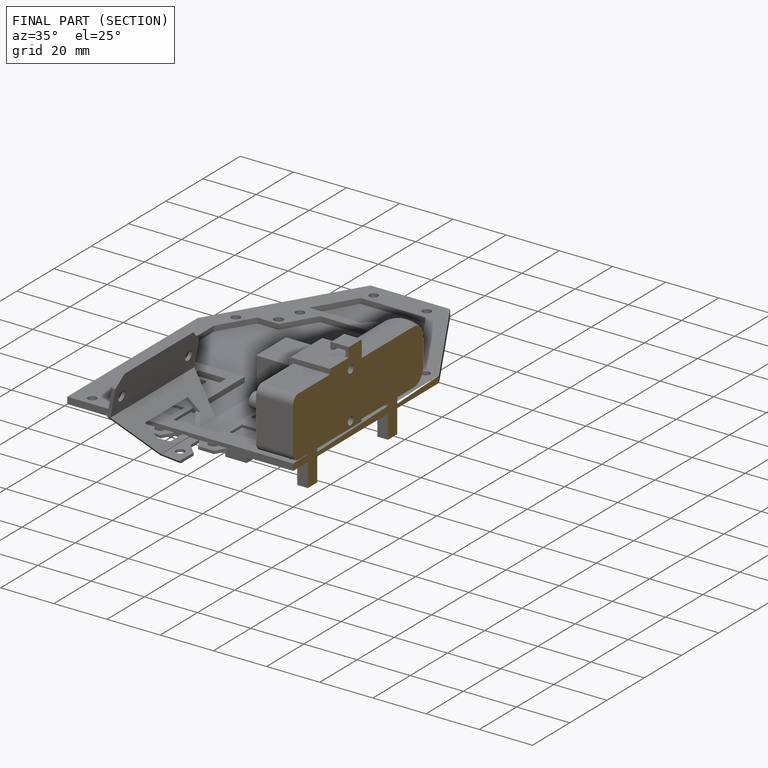
[diagram: finished part — half-section view (interior)]
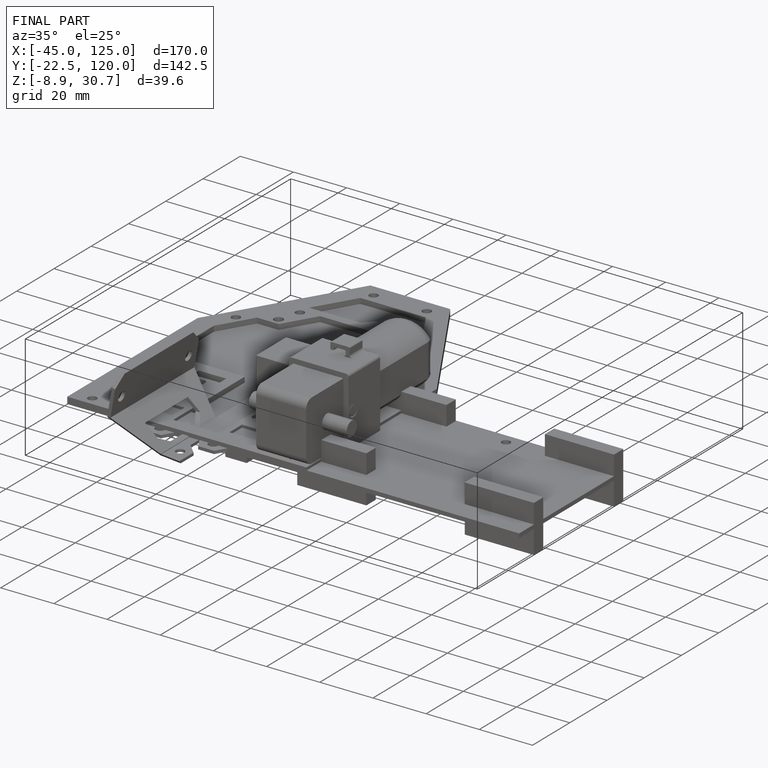
[diagram: finished part — iso view with bounding-box wireframe]
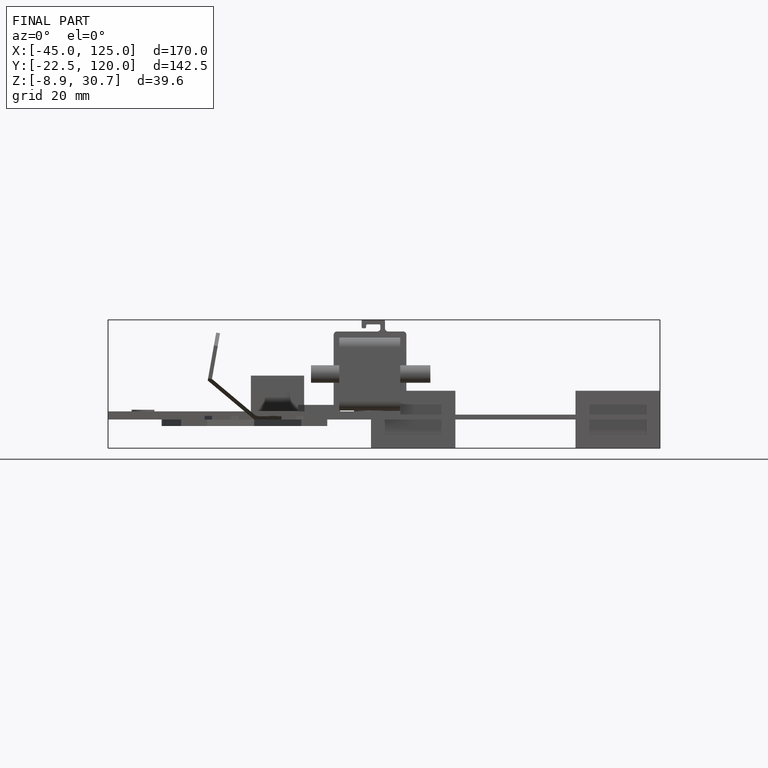
[diagram: finished part — front view with bounding-box wireframe]
